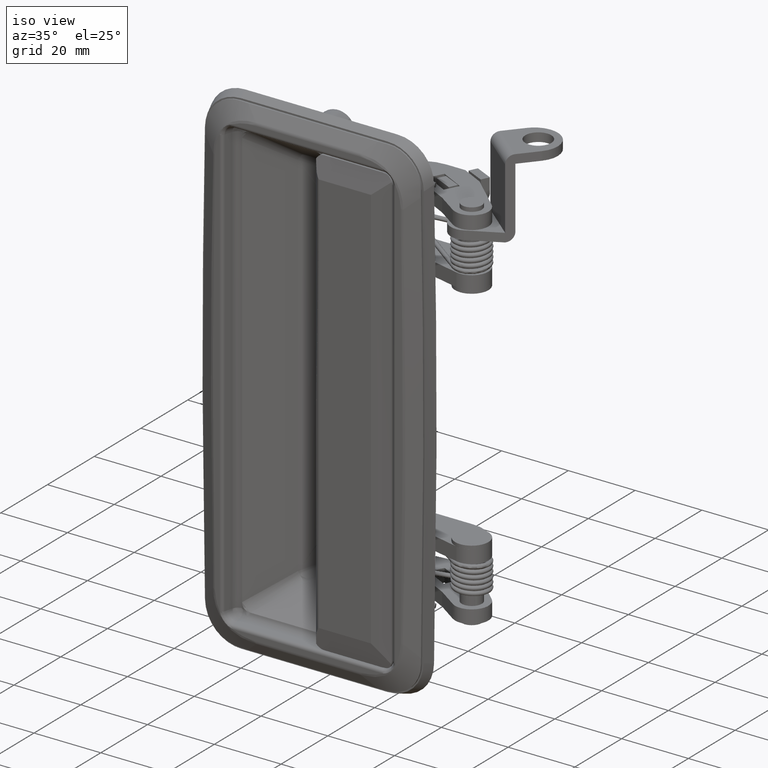
[diagram: clean part render]
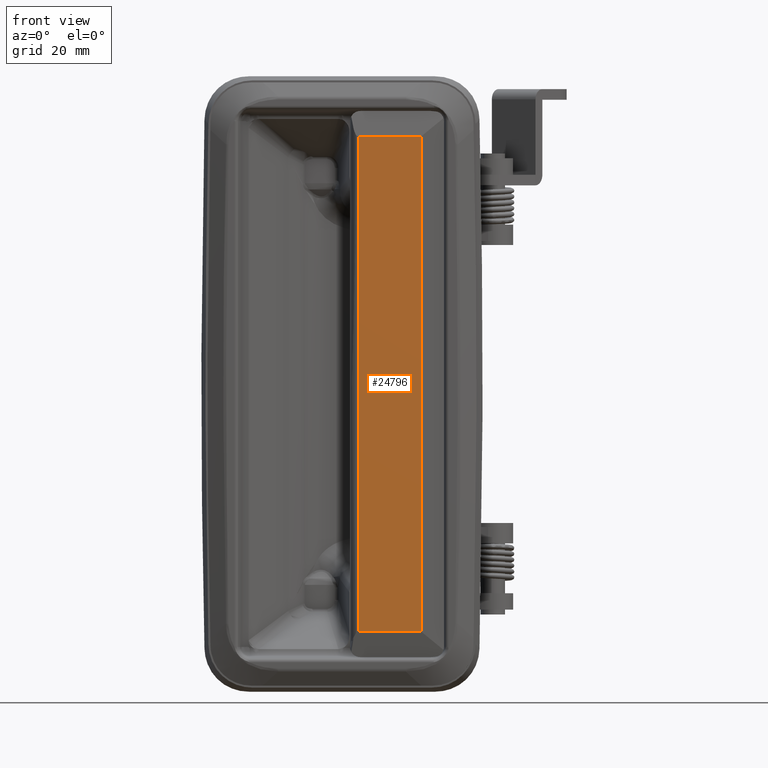
[diagram: tour spotlight — one face highlighted and labeled with its STEP entity id]
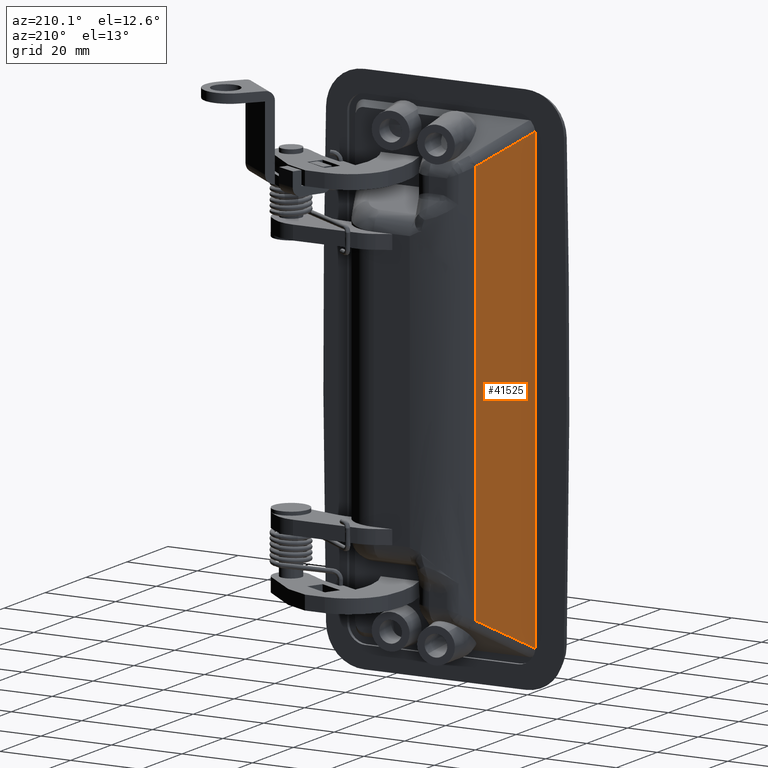
[diagram: tour spotlight — one face highlighted and labeled with its STEP entity id]
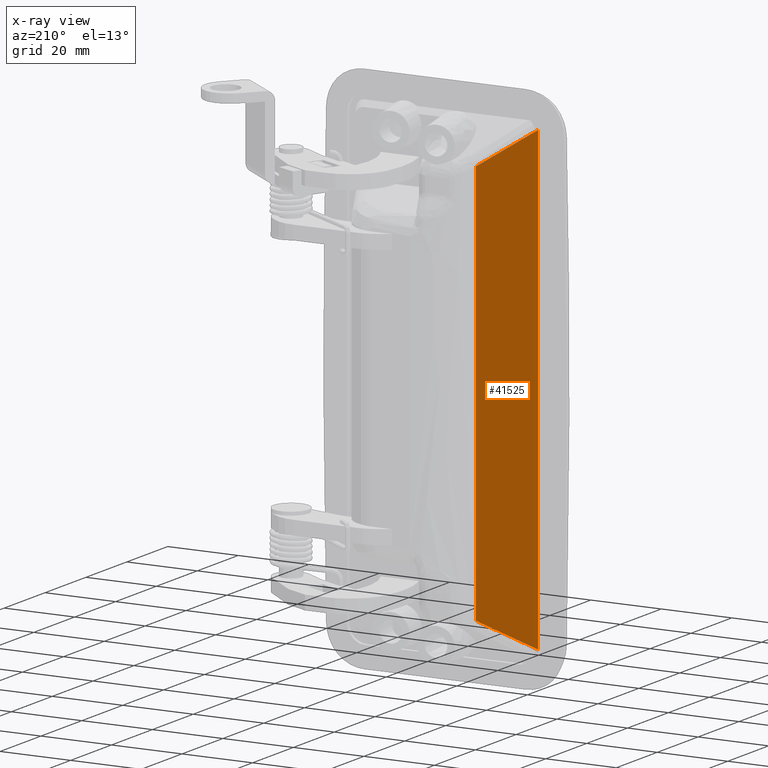
[diagram: x-ray of the same camera — body ghosted, this tour face saturated]
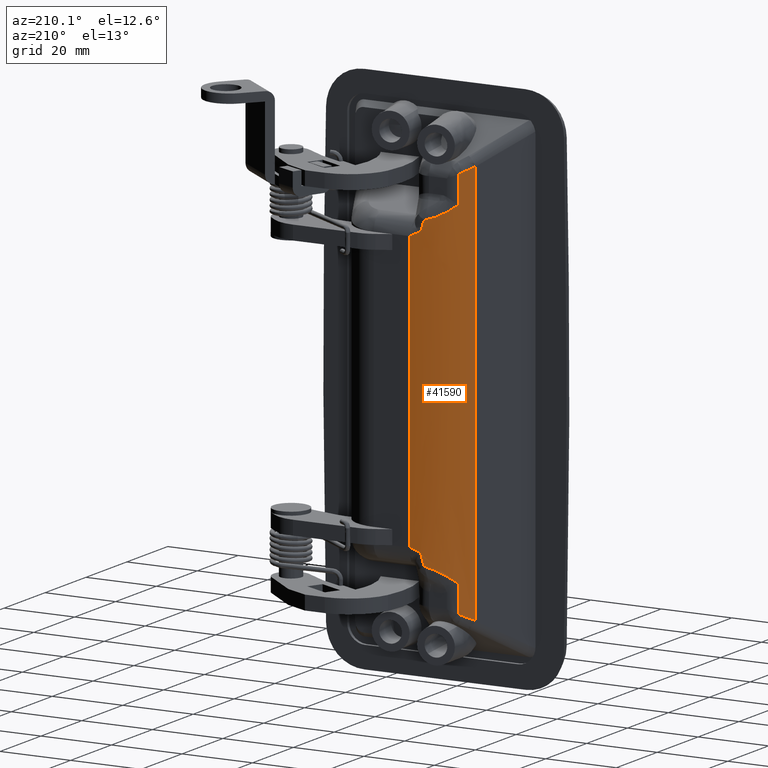
[diagram: tour spotlight — one face highlighted and labeled with its STEP entity id]
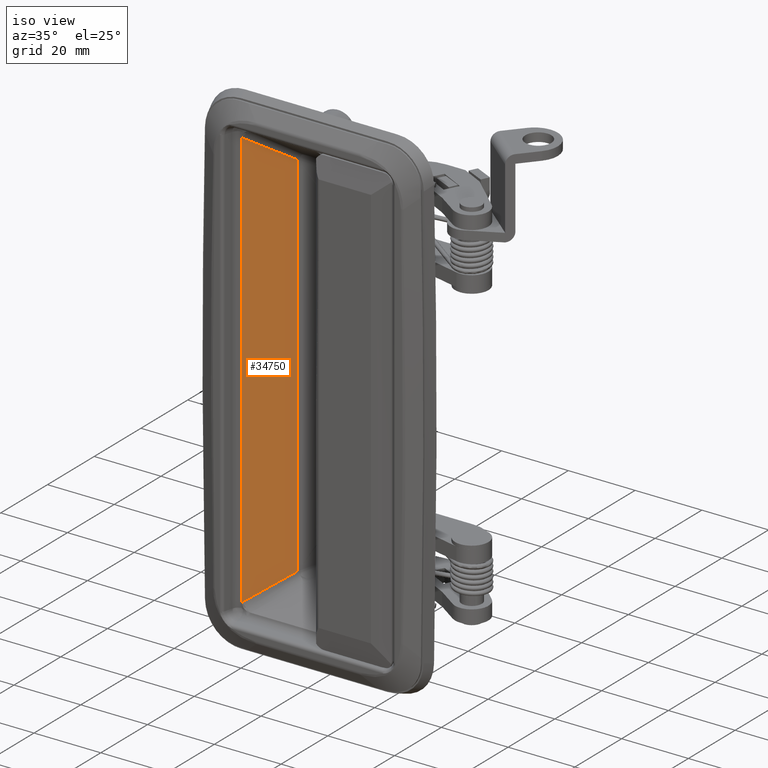
[diagram: tour spotlight — one face highlighted and labeled with its STEP entity id]
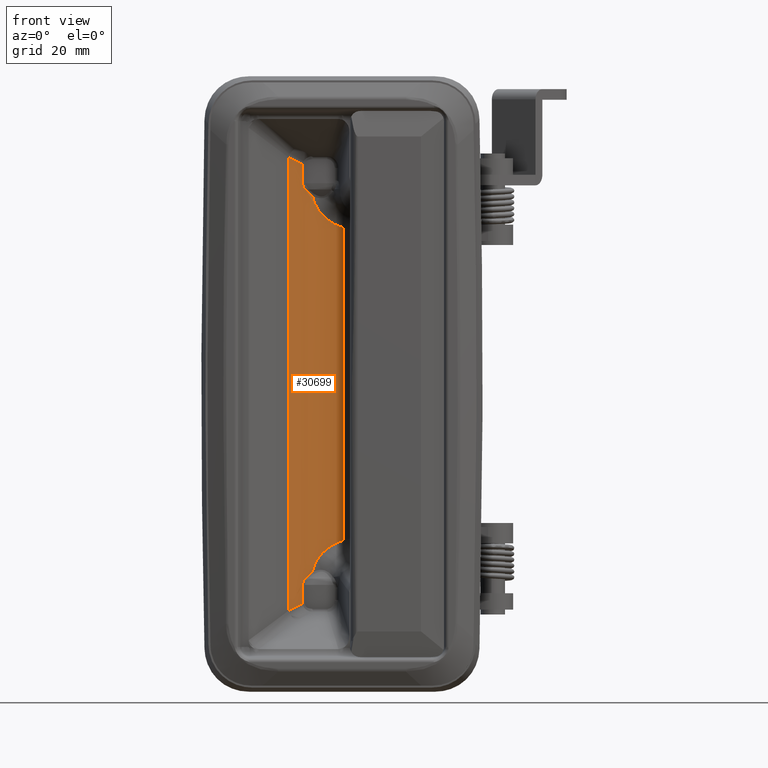
[diagram: tour spotlight — one face highlighted and labeled with its STEP entity id]
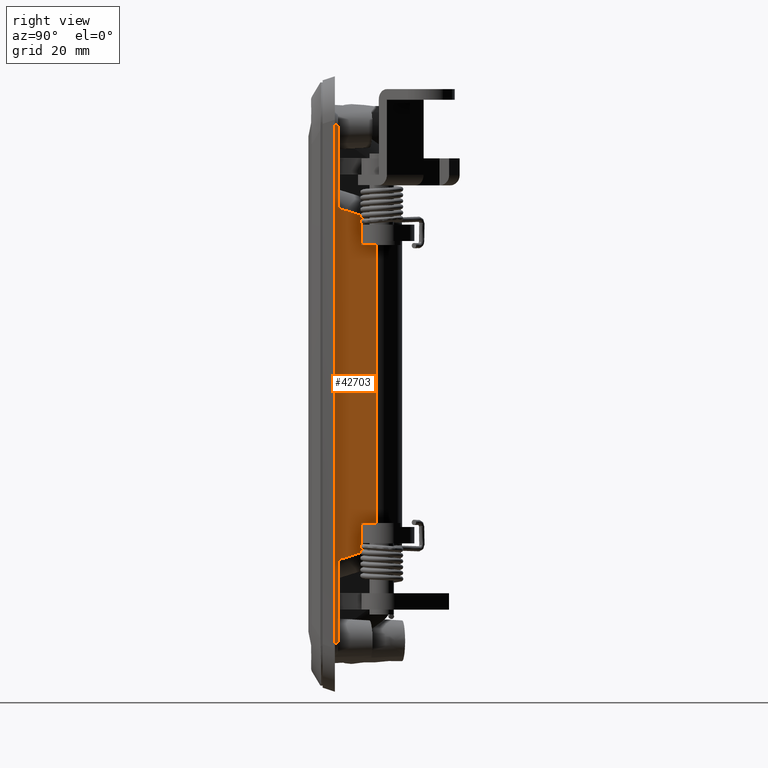
[diagram: tour spotlight — one face highlighted and labeled with its STEP entity id]
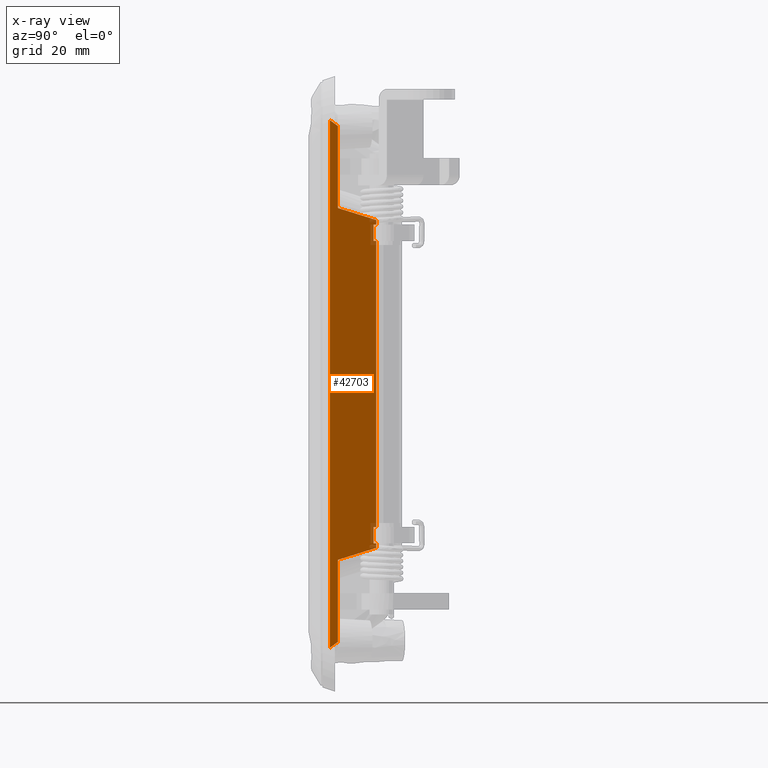
[diagram: x-ray of the same camera — body ghosted, this tour face saturated]
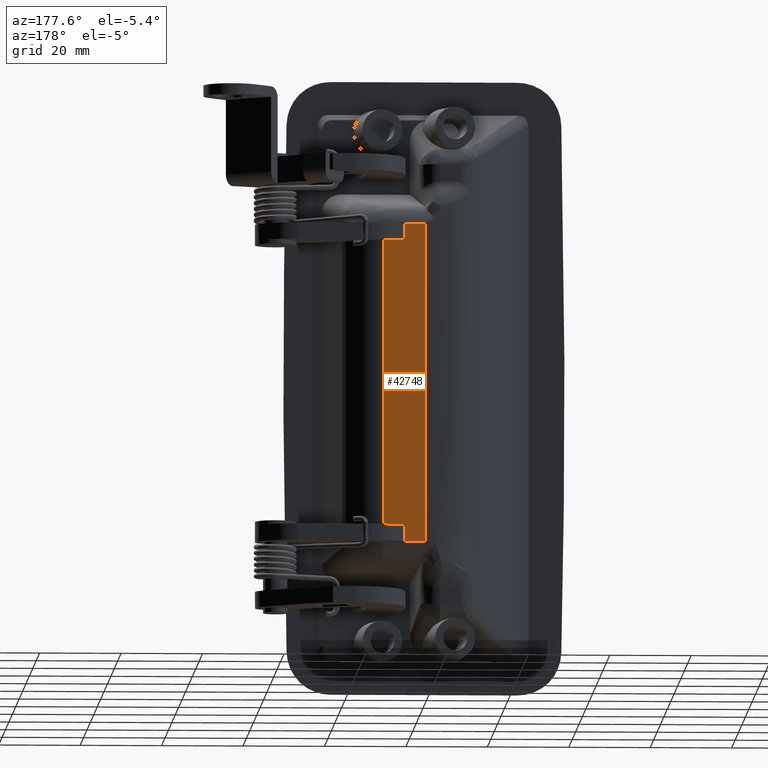
[diagram: tour spotlight — one face highlighted and labeled with its STEP entity id]
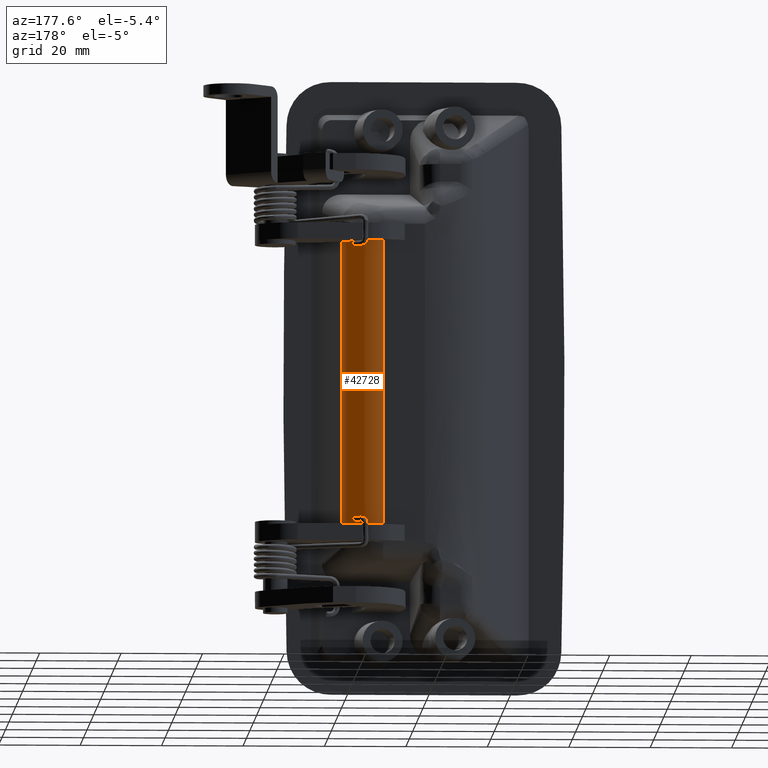
[diagram: tour spotlight — one face highlighted and labeled with its STEP entity id]
A machine part: a face-by-face anatomy tour. The part has 494 B-rep faces; the first image is the clean iso view, then the 8 largest visible faces are spotlighted one at a time (largest first), each with its STEP entity span.

Face 1 — front view, entity #24796. In plain terms, the highlighted face is a freeform B-spline surface patch.
Definition (entity closure, byte-faithful):
#23688=CARTESIAN_POINT('',(19.400964945760901,-0.682999999999989,-60.714620732566402));
#23689=VERTEX_POINT('',#23688);
#23728=CARTESIAN_POINT('',(19.400964945760901,-0.682999999999989,60.714620732566502));
#23729=VERTEX_POINT('',#23728);
#23743=CARTESIAN_POINT('',(19.400964945760901,-0.682999999999989,-60.714620732566402));
#23744=CARTESIAN_POINT('',(19.400964945760901,-0.682999999999989,60.714620732566502));
#23745=QUASI_UNIFORM_CURVE('',1,(#23743,#23744),.UNSPECIFIED.,.F.,.U.);
#23746=EDGE_CURVE('',#23689,#23729,#23745,.T.);
#24769=CARTESIAN_POINT('',(3.230721830809301,-0.682999999999992,-66.780011108396351));
#24770=CARTESIAN_POINT('',(20.170243528037670,-0.682999999999992,-66.780011108396351));
#24771=CARTESIAN_POINT('',(3.230721830809301,-0.682999999999992,66.780014365382499));
#24772=CARTESIAN_POINT('',(20.170243528037670,-0.682999999999992,66.780014365382499));
#24773=B_SPLINE_SURFACE_WITH_KNOTS('',1,1,((#24769,#24771),(#24770,#24772)),.UNSPECIFIED.,.F.,.F.,.U.,(2,2),(2,2),(0.0,16.939521697228368),(0.0,133.560025473778890),.UNSPECIFIED.);
#24774=CARTESIAN_POINT('',(4.0,-0.682999999999992,-60.714620732566402));
#24775=VERTEX_POINT('',#24774);
#24776=CARTESIAN_POINT('',(19.400964945760901,-0.682999999999989,-60.714620732566402));
#24777=CARTESIAN_POINT('',(4.0,-0.682999999999992,-60.714620732566402));
#24778=QUASI_UNIFORM_CURVE('',1,(#24776,#24777),.UNSPECIFIED.,.F.,.U.);
#24779=EDGE_CURVE('',#23689,#24775,#24778,.T.);
#24780=ORIENTED_EDGE('',*,*,#24779,.F.);
#24781=ORIENTED_EDGE('',*,*,#23746,.T.);
#24782=CARTESIAN_POINT('',(4.0,-0.683000000000000,60.714620732566502));
#24783=VERTEX_POINT('',#24782);
#24784=CARTESIAN_POINT('',(4.0,-0.683000000000000,60.714620732566502));
#24785=CARTESIAN_POINT('',(19.400964945760901,-0.682999999999989,60.714620732566502));
#24786=QUASI_UNIFORM_CURVE('',1,(#24784,#24785),.UNSPECIFIED.,.F.,.U.);
#24787=EDGE_CURVE('',#24783,#23729,#24786,.T.);
#24788=ORIENTED_EDGE('',*,*,#24787,.F.);
#24789=CARTESIAN_POINT('',(4.0,-0.682999999999992,-60.714620732566402));
#24790=CARTESIAN_POINT('',(4.0,-0.683000000000000,60.714620732566502));
#24791=QUASI_UNIFORM_CURVE('',1,(#24789,#24790),.UNSPECIFIED.,.F.,.U.);
#24792=EDGE_CURVE('',#24775,#24783,#24791,.T.);
#24793=ORIENTED_EDGE('',*,*,#24792,.F.);
#24794=EDGE_LOOP('',(#24780,#24781,#24788,#24793));
#24795=FACE_OUTER_BOUND('',#24794,.T.);
#24796=ADVANCED_FACE('',(#24795),#24773,.T.);

Face 2 — auxiliary view, entity #41525. An x-ray twin of the same camera follows (body ghosted, this face saturated) — the face is partly hidden behind the body. In plain terms, the highlighted face is a freeform B-spline surface patch.
Definition (entity closure, byte-faithful):
#40148=CARTESIAN_POINT('',(-14.607180682946160,15.955601631500000,57.101182796435701));
#40149=VERTEX_POINT('',#40148);
#40192=CARTESIAN_POINT('',(-25.672463871690901,4.574100000000001,65.321047110445804));
#40193=VERTEX_POINT('',#40192);
#40213=CARTESIAN_POINT('',(-25.672463871690901,4.574100000000001,65.321047110445804));
#40214=CARTESIAN_POINT('',(-14.607180682946160,15.955601631500000,57.101182796435701));
#40215=QUASI_UNIFORM_CURVE('',1,(#40213,#40214),.UNSPECIFIED.,.F.,.U.);
#40216=EDGE_CURVE('',#40193,#40149,#40215,.T.);
#40241=CARTESIAN_POINT('',(-14.607180682946160,15.955601631500000,-57.101182796435197));
#40242=VERTEX_POINT('',#40241);
#40299=CARTESIAN_POINT('',(-25.672463871690852,4.574100000000001,-65.321047110445107));
#40300=VERTEX_POINT('',#40299);
#40301=CARTESIAN_POINT('',(-14.607180682946160,15.955601631500000,-57.101182796435197));
#40302=CARTESIAN_POINT('',(-25.672463871690852,4.574100000000001,-65.321047110445107));
#40303=QUASI_UNIFORM_CURVE('',1,(#40301,#40302),.UNSPECIFIED.,.F.,.U.);
#40304=EDGE_CURVE('',#40242,#40300,#40303,.T.);
#41506=CARTESIAN_POINT('',(-26.225174745522001,4.005594015566110,-71.846619463568871));
#41507=CARTESIAN_POINT('',(-14.054469512321010,16.524107921209549,-71.846619463568871));
#41508=CARTESIAN_POINT('',(-26.225174745522001,4.005594015566110,71.846622967663606));
#41509=CARTESIAN_POINT('',(-14.054469512321010,16.524107921209549,71.846622967663606));
#41510=B_SPLINE_SURFACE_WITH_KNOTS('',1,1,((#41506,#41508),(#41507,#41509)),.UNSPECIFIED.,.F.,.F.,.U.,(2,2),(2,2),(0.0,17.459646510718770),(0.0,143.693242431232510),.UNSPECIFIED.);
#41511=CARTESIAN_POINT('',(-25.672463871690852,4.574100000000001,-65.321047110445107));
#41512=CARTESIAN_POINT('',(-25.672463871690901,4.574100000000001,65.321047110445804));
#41513=QUASI_UNIFORM_CURVE('',1,(#41511,#41512),.UNSPECIFIED.,.F.,.U.);
#41514=EDGE_CURVE('',#40300,#40193,#41513,.T.);
#41515=ORIENTED_EDGE('',*,*,#41514,.T.);
#41516=ORIENTED_EDGE('',*,*,#40216,.T.);
#41517=CARTESIAN_POINT('',(-14.607180682946160,15.955601631500000,-57.101182796435197));
#41518=CARTESIAN_POINT('',(-14.607180682946160,15.955601631500000,57.101182796435701));
#41519=QUASI_UNIFORM_CURVE('',1,(#41517,#41518),.UNSPECIFIED.,.F.,.U.);
#41520=EDGE_CURVE('',#40242,#40149,#41519,.T.);
#41521=ORIENTED_EDGE('',*,*,#41520,.F.);
#41522=ORIENTED_EDGE('',*,*,#40304,.T.);
#41523=EDGE_LOOP('',(#41515,#41516,#41521,#41522));
#41524=FACE_OUTER_BOUND('',#41523,.T.);
#41525=ADVANCED_FACE('',(#41524),#41510,.F.);

Face 3 — auxiliary view, entity #41590. In plain terms, the highlighted face is a freeform B-spline surface patch.
Definition (entity closure, byte-faithful):
#36761=CARTESIAN_POINT('',(0.449755999999865,22.317000000000000,-39.139686552348699));
#36762=VERTEX_POINT('',#36761);
#36763=CARTESIAN_POINT('',(-1.878984883214550,22.187480729941200,-39.969971139252998));
#36764=VERTEX_POINT('',#36763);
#36765=CARTESIAN_POINT('',(0.449755999999866,22.317000000000000,-39.139686552348699));
#36766=CARTESIAN_POINT('',(0.061413065597201,22.317000000000000,-39.279301864897192));
#36767=CARTESIAN_POINT('',(-0.327435267551959,22.306213741792529,-39.419099998958259));
#36768=CARTESIAN_POINT('',(-1.103719780657988,22.263069625682061,-39.696460437575240));
#36769=CARTESIAN_POINT('',(-1.491430097295720,22.230724327735281,-39.834125388535092));
#36770=CARTESIAN_POINT('',(-1.878984883214545,22.187480729941200,-39.969971139252998));
#36771=B_SPLINE_CURVE_WITH_KNOTS('',3,(#36765,#36766,#36767,#36768,#36769,#36770),.UNSPECIFIED.,.F.,.U.,(4,2,4),(0.0,0.500000000000000,1.0),.UNSPECIFIED.);
#36772=EDGE_CURVE('',#36762,#36764,#36771,.T.);
#36841=CARTESIAN_POINT('',(-2.843390640956000,22.057182863252748,-41.115259240074700));
#36842=VERTEX_POINT('',#36841);
#36843=CARTESIAN_POINT('',(-1.878984883214550,22.187480729941200,-39.969971139252998));
#36844=CARTESIAN_POINT('',(-1.909970895055623,22.184023291968568,-39.980832359893718));
#36845=CARTESIAN_POINT('',(-1.940739559673836,22.180520217537801,-39.992493089509338));
#36846=CARTESIAN_POINT('',(-2.001807711804034,22.173432586983662,-40.017547031509388));
#36847=CARTESIAN_POINT('',(-2.032182525772175,22.169838741373130,-40.030979241419558));
#36848=CARTESIAN_POINT('',(-2.121656458018279,22.159059582691050,-40.073677571368307));
#36849=CARTESIAN_POINT('',(-2.179289546476281,22.151856357184791,-40.105386818189132));
#36850=CARTESIAN_POINT('',(-2.290085368411397,22.137576101201230,-40.176031007091133));
#36851=CARTESIAN_POINT('',(-2.343292739803885,22.130492744302291,-40.214989276373188));
#36852=CARTESIAN_POINT('',(-2.444362627135531,22.116679777633870,-40.301195651774378));
#36853=CARTESIAN_POINT('',(-2.491117556402377,22.110102816374891,-40.347503209486831));
#36854=CARTESIAN_POINT('',(-2.576544053552935,22.097841416866391,-40.446993224797268));
#36855=CARTESIAN_POINT('',(-2.615208352533883,22.092157933383628,-40.500181882843052));
#36856=CARTESIAN_POINT('',(-2.666464535443045,22.084509912946171,-40.585713410552017));
#36857=CARTESIAN_POINT('',(-2.682363780149943,22.082115933137139,-40.615123887290501));
#36858=CARTESIAN_POINT('',(-2.711293246681967,22.077731723469778,-40.674575782476090));
#36859=CARTESIAN_POINT('',(-2.724413271289357,22.075728181431110,-40.704768906166798));
#36860=CARTESIAN_POINT('',(-2.760276294597163,22.070223310151100,-40.796564022493200));
#36861=CARTESIAN_POINT('',(-2.779485047563366,22.067236160051610,-40.859394850984742));
#36862=CARTESIAN_POINT('',(-2.813620622525986,22.061895069889669,-40.986545847343457));
#36863=CARTESIAN_POINT('',(-2.828606803515695,22.059530255507060,-41.050654714847219));
#36864=CARTESIAN_POINT('',(-2.843390640955770,22.057182863252748,-41.115259240074600));
#36865=B_SPLINE_CURVE_WITH_KNOTS('',3,(#36843,#36844,#36845,#36846,#36847,#36848,#36849,#36850,#36851,#36852,#36853,#36854,#36855,#36856,#36857,#36858,#36859,#36860,#36861,#36862,#36863,#36864),.UNSPECIFIED.,.F.,.U.,(4,2,2,2,2,2,2,2,2,2,4),(0.0,0.062500000000002,0.125000000000003,0.250000000000003,0.375000000000002,0.500000000000001,0.625000000000000,0.687500000000000,0.750000000000000,0.875000000000000,1.0),.UNSPECIFIED.);
#36866=EDGE_CURVE('',#36764,#36842,#36865,.T.);
#37267=CARTESIAN_POINT('',(-11.307683772092620,18.717074999999799,-55.241236998996797));
#37268=VERTEX_POINT('',#37267);
#37335=CARTESIAN_POINT('',(-12.106303124971801,18.149866043850551,-55.742846663003100));
#37336=VERTEX_POINT('',#37335);
#37337=CARTESIAN_POINT('',(-11.307683772092640,18.717074999999799,-55.241236998996698));
#37338=CARTESIAN_POINT('',(-11.432916510690330,18.632453733622700,-55.348579346366137));
#37339=CARTESIAN_POINT('',(-11.563474047434379,18.542246814039959,-55.441127881122938));
#37340=CARTESIAN_POINT('',(-11.830677861833500,18.352779058860410,-55.606293020900921));
#37341=CARTESIAN_POINT('',(-11.967412256288039,18.253468244127589,-55.678712818719212));
#37342=CARTESIAN_POINT('',(-12.106303124971760,18.149866043850551,-55.742846663003100));
#37343=B_SPLINE_CURVE_WITH_KNOTS('',3,(#37337,#37338,#37339,#37340,#37341,#37342),.UNSPECIFIED.,.F.,.U.,(4,2,4),(0.0,0.500000000000000,1.0),.UNSPECIFIED.);
#37344=EDGE_CURVE('',#37268,#37336,#37343,.T.);
#37399=CARTESIAN_POINT('',(-11.307683772092741,18.717074999999749,55.241236998997103));
#37400=VERTEX_POINT('',#37399);
#37477=CARTESIAN_POINT('',(-12.106303124971801,18.149866043850551,55.742846663003398));
#37478=VERTEX_POINT('',#37477);
#37479=CARTESIAN_POINT('',(-12.106303124971801,18.149866043850551,55.742846663003398));
#37480=CARTESIAN_POINT('',(-11.967412256288091,18.253468244127571,55.678712818719511));
#37481=CARTESIAN_POINT('',(-11.830677861833570,18.352779058860381,55.606293020901241));
#37482=CARTESIAN_POINT('',(-11.563474047434459,18.542246814039899,55.441127881123244));
#37483=CARTESIAN_POINT('',(-11.432916510690420,18.632453733622601,55.348579346366520));
#37484=CARTESIAN_POINT('',(-11.307683772092741,18.717074999999699,55.241236998997103));
#37485=B_SPLINE_CURVE_WITH_KNOTS('',3,(#37479,#37480,#37481,#37482,#37483,#37484),.UNSPECIFIED.,.F.,.U.,(4,2,4),(0.0,0.500000000000000,1.0),.UNSPECIFIED.);
#37486=EDGE_CURVE('',#37478,#37400,#37485,.T.);
#39195=CARTESIAN_POINT('',(-3.559311768798585,21.930766653020552,-43.534006773501197));
#39196=VERTEX_POINT('',#39195);
#39257=CARTESIAN_POINT('',(-3.559311768798560,21.930766653020552,43.534006773501702));
#39258=VERTEX_POINT('',#39257);
#39357=CARTESIAN_POINT('',(-2.835469585392660,22.058439025609651,40.726829875074550));
#39358=VERTEX_POINT('',#39357);
#39359=CARTESIAN_POINT('',(-3.559311768798570,21.930766653020552,43.534006773501702));
#39360=CARTESIAN_POINT('',(-3.424795143993407,21.956928114627800,43.327488131741497));
#39361=CARTESIAN_POINT('',(-3.313956078361382,21.977187893206970,43.109540973289157));
#39362=CARTESIAN_POINT('',(-3.174684697184573,22.001913650543671,42.769683847403748));
#39363=CARTESIAN_POINT('',(-3.132845428472716,22.009182629974440,42.654199627587147));
#39364=CARTESIAN_POINT('',(-3.057651675386747,22.022060888250220,42.419174191841670));
#39365=CARTESIAN_POINT('',(-3.024622702756911,22.027614289289559,42.300614817682970));
#39366=CARTESIAN_POINT('',(-2.938262096321884,22.041978644586681,41.943627915576883));
#39367=CARTESIAN_POINT('',(-2.897321427483276,22.048564939895432,41.703220486285659));
#39368=CARTESIAN_POINT('',(-2.844620193850572,22.057004765092529,41.218178758936993));
#39369=CARTESIAN_POINT('',(-2.832893309638575,22.058847080567251,40.973539448505242));
#39370=CARTESIAN_POINT('',(-2.835469585392655,22.058439025609651,40.726829875074550));
#39371=B_SPLINE_CURVE_WITH_KNOTS('',3,(#39359,#39360,#39361,#39362,#39363,#39364,#39365,#39366,#39367,#39368,#39369,#39370),.UNSPECIFIED.,.F.,.U.,(4,2,2,2,2,4),(0.0,0.250000000000008,0.375000000000009,0.500000000000010,0.750000000000005,1.0),.UNSPECIFIED.);
#39372=EDGE_CURVE('',#39258,#39358,#39371,.T.);
#39536=CARTESIAN_POINT('',(-2.843390640956003,22.057182863252748,-41.115259240074693));
#39537=CARTESIAN_POINT('',(-2.854381983231861,22.055437647111980,-41.328734362953327));
#39538=CARTESIAN_POINT('',(-2.876240761813304,22.051967419470429,-41.539831162310897));
#39539=CARTESIAN_POINT('',(-2.942557425091355,22.041221046206719,-41.957071097759503));
#39540=CARTESIAN_POINT('',(-2.986993094781610,22.033952406779019,-42.163219238966029));
#39541=CARTESIAN_POINT('',(-3.101331507913140,22.014660227097480,-42.569916418481398));
#39542=CARTESIAN_POINT('',(-3.171157015090867,22.002660773418370,-42.770482785938327));
#39543=CARTESIAN_POINT('',(-3.342467033726368,21.971941712778300,-43.164625928297262));
#39544=CARTESIAN_POINT('',(-3.442248875012616,21.953533626291339,-43.354284230951478));
#39545=CARTESIAN_POINT('',(-3.559311768798585,21.930766653020552,-43.534006773501197));
#39546=B_SPLINE_CURVE_WITH_KNOTS('',3,(#39536,#39537,#39538,#39539,#39540,#39541,#39542,#39543,#39544,#39545),.UNSPECIFIED.,.F.,.U.,(4,2,2,2,4),(0.0,0.250000000000000,0.500000000000000,0.750000000000000,1.0),.UNSPECIFIED.);
#39547=EDGE_CURVE('',#36842,#39196,#39546,.T.);
#39829=CARTESIAN_POINT('',(-11.307683772092741,18.717074999999699,47.613119435320201));
#39830=VERTEX_POINT('',#39829);
#40069=CARTESIAN_POINT('',(-11.307683772092711,18.717074999999738,47.613119435320229));
#40070=CARTESIAN_POINT('',(-7.761021605826108,21.113597245555553,44.571233252186396));
#40071=CARTESIAN_POINT('',(-3.559311768798550,21.930766653020552,43.534006773501687));
#40079=(BOUNDED_CURVE()B_SPLINE_CURVE(2,(#40069,#40070,#40071),.UNSPECIFIED.,.F.,.U.)CURVE()GEOMETRIC_REPRESENTATION_ITEM()QUASI_UNIFORM_CURVE()RATIONAL_B_SPLINE_CURVE((1.0,0.979852283414046,1.0))REPRESENTATION_ITEM(''));
#40080=EDGE_CURVE('',#39830,#39258,#40079,.T.);
#40101=CARTESIAN_POINT('',(-11.307683772092741,18.717074999999749,55.241236998997103));
#40102=CARTESIAN_POINT('',(-11.307683772092741,18.717074999999699,47.613119435320201));
#40103=QUASI_UNIFORM_CURVE('',1,(#40101,#40102),.UNSPECIFIED.,.F.,.U.);
#40104=EDGE_CURVE('',#37400,#39830,#40103,.T.);
#40148=CARTESIAN_POINT('',(-14.607180682946160,15.955601631500000,57.101182796435701));
#40149=VERTEX_POINT('',#40148);
#40150=CARTESIAN_POINT('',(-14.607180682946160,15.955601631500000,57.101182796435673));
#40151=CARTESIAN_POINT('',(-13.443925423356877,17.152099851114780,56.360503252009593));
#40152=CARTESIAN_POINT('',(-12.106303124971779,18.149866043850540,55.742846663003370));
#40160=(BOUNDED_CURVE()B_SPLINE_CURVE(2,(#40150,#40151,#40152),.UNSPECIFIED.,.F.,.U.)CURVE()GEOMETRIC_REPRESENTATION_ITEM()QUASI_UNIFORM_CURVE()RATIONAL_B_SPLINE_CURVE((1.0,0.996857538411070,1.0))REPRESENTATION_ITEM(''));
#40161=EDGE_CURVE('',#40149,#37478,#40160,.T.);
#40241=CARTESIAN_POINT('',(-14.607180682946160,15.955601631500000,-57.101182796435197));
#40242=VERTEX_POINT('',#40241);
#40243=CARTESIAN_POINT('',(-12.106303124971820,18.149866043850519,-55.742846663003050));
#40244=CARTESIAN_POINT('',(-13.443925423356903,17.152099851114773,-56.360503252009231));
#40245=CARTESIAN_POINT('',(-14.607180682946160,15.955601631500020,-57.101182796435282));
#40253=(BOUNDED_CURVE()B_SPLINE_CURVE(2,(#40243,#40244,#40245),.UNSPECIFIED.,.F.,.U.)CURVE()GEOMETRIC_REPRESENTATION_ITEM()QUASI_UNIFORM_CURVE()RATIONAL_B_SPLINE_CURVE((1.0,0.996857538411044,1.0))REPRESENTATION_ITEM(''));
#40254=EDGE_CURVE('',#37336,#40242,#40253,.T.);
#40852=CARTESIAN_POINT('',(0.449755999999865,22.317000000000000,39.139770970547900));
#40853=VERTEX_POINT('',#40852);
#40854=CARTESIAN_POINT('',(-2.835469585392660,22.058439025609651,40.726829875074550));
#40855=CARTESIAN_POINT('',(-2.289076851526810,22.144981882484359,40.468277607222660));
#40856=CARTESIAN_POINT('',(-1.742574865602077,22.209467186410500,40.205559729084847));
#40857=CARTESIAN_POINT('',(-0.647769156070094,22.295487512003898,39.675310829707144));
#40858=CARTESIAN_POINT('',(-0.098992366881809,22.317000000000000,39.407532591665863));
#40859=CARTESIAN_POINT('',(0.449755999999866,22.317000000000000,39.139770970547900));
#40860=B_SPLINE_CURVE_WITH_KNOTS('',3,(#40854,#40855,#40856,#40857,#40858,#40859),.UNSPECIFIED.,.F.,.U.,(4,2,4),(0.0,0.500000000000000,1.0),.UNSPECIFIED.);
#40861=EDGE_CURVE('',#39358,#40853,#40860,.T.);
#41065=CARTESIAN_POINT('',(-11.307683772092620,18.717074999999799,-47.613119435319803));
#41066=VERTEX_POINT('',#41065);
#41134=CARTESIAN_POINT('',(-3.559311768798585,21.930766653020530,-43.534006773501147));
#41135=CARTESIAN_POINT('',(-7.761021605826061,21.113597245555546,-44.571233252185856));
#41136=CARTESIAN_POINT('',(-11.307683772092620,18.717074999999792,-47.613119435319639));
#41144=(BOUNDED_CURVE()B_SPLINE_CURVE(2,(#41134,#41135,#41136),.UNSPECIFIED.,.F.,.U.)CURVE()GEOMETRIC_REPRESENTATION_ITEM()QUASI_UNIFORM_CURVE()RATIONAL_B_SPLINE_CURVE((1.0,0.979852283414047,1.0))REPRESENTATION_ITEM(''));
#41145=EDGE_CURVE('',#39196,#41066,#41144,.T.);
#41170=CARTESIAN_POINT('',(-11.307683772092620,18.717074999999799,-47.613119435319803));
#41171=CARTESIAN_POINT('',(-11.307683772092620,18.717074999999799,-55.241236998996797));
#41172=QUASI_UNIFORM_CURVE('',1,(#41170,#41171),.UNSPECIFIED.,.F.,.U.);
#41173=EDGE_CURVE('',#41066,#37268,#41172,.T.);
#41517=CARTESIAN_POINT('',(-14.607180682946160,15.955601631500000,-57.101182796435197));
#41518=CARTESIAN_POINT('',(-14.607180682946160,15.955601631500000,57.101182796435701));
#41519=QUASI_UNIFORM_CURVE('',1,(#41517,#41518),.UNSPECIFIED.,.F.,.U.);
#41520=EDGE_CURVE('',#40242,#40149,#41519,.T.);
#41555=CARTESIAN_POINT('',(-15.033068073012750,15.504394359928840,-59.956241936256980));
#41556=CARTESIAN_POINT('',(-15.033068073012750,15.504394359928840,60.027618414753043));
#41557=CARTESIAN_POINT('',(-8.458008802330976,22.679812437058196,-59.956241936256987));
#41558=CARTESIAN_POINT('',(-8.458008802330976,22.679812437058196,60.027618414753029));
#41559=CARTESIAN_POINT('',(1.266938577987504,22.301094277195602,-59.956241936256987));
#41560=CARTESIAN_POINT('',(1.266938577987504,22.301094277195602,60.027618414753036));
#41568=(BOUNDED_SURFACE()B_SPLINE_SURFACE(1,2,((#41555,#41557,#41559),(#41556,#41558,#41560)),.UNSPECIFIED.,.F.,.F.,.U.)B_SPLINE_SURFACE_WITH_KNOTS((2,2),(3,3),(0.0,119.983860351009990),(0.0,18.518515983173920),.UNSPECIFIED.)GEOMETRIC_REPRESENTATION_ITEM()RATIONAL_B_SPLINE_SURFACE(((1.0,0.903346919665803,0.991303886398666),(1.0,0.903346919665803,0.991303886398666)))REPRESENTATION_ITEM('')SURFACE());
#41569=CARTESIAN_POINT('',(0.449755999999865,22.317000000000000,-39.139686552348699));
#41570=CARTESIAN_POINT('',(0.449755999999865,22.317000000000000,39.139770970547900));
#41571=QUASI_UNIFORM_CURVE('',1,(#41569,#41570),.UNSPECIFIED.,.F.,.U.);
#41572=EDGE_CURVE('',#36762,#40853,#41571,.T.);
#41573=ORIENTED_EDGE('',*,*,#41572,.F.);
#41574=ORIENTED_EDGE('',*,*,#36772,.T.);
#41575=ORIENTED_EDGE('',*,*,#36866,.T.);
#41576=ORIENTED_EDGE('',*,*,#39547,.T.);
#41577=ORIENTED_EDGE('',*,*,#41145,.T.);
#41578=ORIENTED_EDGE('',*,*,#41173,.T.);
#41579=ORIENTED_EDGE('',*,*,#37344,.T.);
#41580=ORIENTED_EDGE('',*,*,#40254,.T.);
#41581=ORIENTED_EDGE('',*,*,#41520,.T.);
#41582=ORIENTED_EDGE('',*,*,#40161,.T.);
#41583=ORIENTED_EDGE('',*,*,#37486,.T.);
#41584=ORIENTED_EDGE('',*,*,#40104,.T.);
#41585=ORIENTED_EDGE('',*,*,#40080,.T.);
#41586=ORIENTED_EDGE('',*,*,#39372,.T.);
#41587=ORIENTED_EDGE('',*,*,#40861,.T.);
#41588=EDGE_LOOP('',(#41573,#41574,#41575,#41576,#41577,#41578,#41579,#41580,#41581,#41582,#41583,#41584,#41585,#41586,#41587));
#41589=FACE_OUTER_BOUND('',#41588,.T.);
#41590=ADVANCED_FACE('',(#41589),#41568,.T.);

Face 4 — iso view, entity #34750. In plain terms, the highlighted face is a freeform B-spline surface patch.
Definition (entity closure, byte-faithful):
#30545=CARTESIAN_POINT('',(-13.173186713141799,14.561449095166660,-55.641001565722313));
#30546=VERTEX_POINT('',#30545);
#30671=CARTESIAN_POINT('',(-13.173186713141799,14.561449095166660,55.641001565722597));
#30672=VERTEX_POINT('',#30671);
#30686=CARTESIAN_POINT('',(-13.173186713141799,14.561449095166660,-55.641001565722313));
#30687=CARTESIAN_POINT('',(-13.173186713141799,14.561449095166660,55.641001565722597));
#30688=QUASI_UNIFORM_CURVE('',1,(#30686,#30687),.UNSPECIFIED.,.F.,.U.);
#30689=EDGE_CURVE('',#30546,#30672,#30688,.T.);
#32345=CARTESIAN_POINT('',(-22.883051862834449,4.574100000000001,62.853991299143203));
#32346=VERTEX_POINT('',#32345);
#32475=CARTESIAN_POINT('',(-22.883051862834449,4.574100000000001,-62.853991299143203));
#32476=VERTEX_POINT('',#32475);
#32487=CARTESIAN_POINT('',(-22.883051862834449,4.574100000000001,-62.853991299143203));
#32488=CARTESIAN_POINT('',(-22.883051862834449,4.574100000000001,62.853991299143203));
#32489=QUASI_UNIFORM_CURVE('',1,(#32487,#32488),.UNSPECIFIED.,.F.,.U.);
#32490=EDGE_CURVE('',#32476,#32346,#32489,.T.);
#34725=CARTESIAN_POINT('',(-22.883051862834449,4.574100000000001,-62.853991299143203));
#34726=CARTESIAN_POINT('',(-13.173186713141799,14.561449095166660,-55.641001565722313));
#34727=QUASI_UNIFORM_CURVE('',1,(#34725,#34726),.UNSPECIFIED.,.F.,.U.);
#34728=EDGE_CURVE('',#32476,#30546,#34727,.T.);
#34735=CARTESIAN_POINT('',(-23.368059608242000,4.075231932053846,-69.133104786281137));
#34736=CARTESIAN_POINT('',(-12.688178707295380,15.060317430994390,-69.133104786281137));
#34737=CARTESIAN_POINT('',(-23.368059608242000,4.075231932053846,69.133108158031988));
#34738=CARTESIAN_POINT('',(-12.688178707295380,15.060317430994390,69.133108158031988));
#34739=B_SPLINE_SURFACE_WITH_KNOTS('',1,1,((#34735,#34737),(#34736,#34738)),.UNSPECIFIED.,.F.,.F.,.U.,(2,2),(2,2),(0.0,15.320964704529491),(0.0,138.266212944313110),.UNSPECIFIED.);
#34740=ORIENTED_EDGE('',*,*,#32490,.F.);
#34741=ORIENTED_EDGE('',*,*,#34728,.T.);
#34742=ORIENTED_EDGE('',*,*,#30689,.T.);
#34743=CARTESIAN_POINT('',(-13.173186713141799,14.561449095166660,55.641001565722597));
#34744=CARTESIAN_POINT('',(-22.883051862834449,4.574100000000001,62.853991299143203));
#34745=QUASI_UNIFORM_CURVE('',1,(#34743,#34744),.UNSPECIFIED.,.F.,.U.);
#34746=EDGE_CURVE('',#30672,#32346,#34745,.T.);
#34747=ORIENTED_EDGE('',*,*,#34746,.T.);
#34748=EDGE_LOOP('',(#34740,#34741,#34742,#34747));
#34749=FACE_OUTER_BOUND('',#34748,.T.);
#34750=ADVANCED_FACE('',(#34749),#34739,.T.);

Face 5 — front view, entity #30699. In plain terms, the highlighted face is a freeform B-spline surface patch.
Definition (entity closure, byte-faithful):
#29068=CARTESIAN_POINT('',(0.449755999999865,20.317000000000000,38.318796090525247));
#29069=VERTEX_POINT('',#29068);
#29083=CARTESIAN_POINT('',(0.449755999999865,20.317000000000000,-38.318717967305012));
#29084=VERTEX_POINT('',#29083);
#29085=CARTESIAN_POINT('',(0.449755999999865,20.317000000000000,-38.318717967305012));
#29086=CARTESIAN_POINT('',(0.449755999999865,20.317000000000000,38.318796090525247));
#29087=QUASI_UNIFORM_CURVE('',1,(#29085,#29086),.UNSPECIFIED.,.F.,.U.);
#29088=EDGE_CURVE('',#29084,#29069,#29087,.T.);
#29450=CARTESIAN_POINT('',(-7.267729857805110,18.679039397334051,46.183072071130503));
#29451=VERTEX_POINT('',#29450);
#29490=CARTESIAN_POINT('',(0.449755999999918,20.317000000000000,38.318796090525247));
#29491=CARTESIAN_POINT('',(-0.023743081015220,20.317000000000011,38.454206260743383));
#29492=CARTESIAN_POINT('',(-0.484375220984115,20.299332729958540,38.614887391665810));
#29493=CARTESIAN_POINT('',(-1.379899216033723,20.234027218865901,38.987829100253776));
#29494=CARTESIAN_POINT('',(-1.814797699918136,20.186369314838331,39.200071170988622));
#29495=CARTESIAN_POINT('',(-2.341696470732749,20.111124732642221,39.499611824671490));
#29496=CARTESIAN_POINT('',(-2.446237162257183,20.095291975441501,39.561238149665627));
#29497=CARTESIAN_POINT('',(-2.653612041124544,20.062136241492031,39.688005137411800));
#29498=CARTESIAN_POINT('',(-2.756613742214069,20.044783078467471,39.753257225865262));
#29499=CARTESIAN_POINT('',(-3.061709924525872,19.990839211382450,39.953560581247757));
#29500=CARTESIAN_POINT('',(-3.259483089457709,19.952453637305680,40.092843193003013));
#29501=CARTESIAN_POINT('',(-3.836231583771334,19.831444577018161,40.527976258377130));
#29502=CARTESIAN_POINT('',(-4.198715121974550,19.742963702529099,40.841020269226533));
#29503=CARTESIAN_POINT('',(-4.709253300398983,19.604037173175030,41.346715184759532));
#29504=CARTESIAN_POINT('',(-4.873882537979210,19.556693733265060,41.521323152054933));
#29505=CARTESIAN_POINT('',(-5.112285454588439,19.484844768960141,41.792742251924139));
#29506=CARTESIAN_POINT('',(-5.190464810996592,19.460712584269722,41.884974084105806));
#29507=CARTESIAN_POINT('',(-5.343017196193627,19.412584429214959,42.071585890873180));
#29508=CARTESIAN_POINT('',(-5.417430028634781,19.388578904702030,42.165997160943682));
#29509=CARTESIAN_POINT('',(-5.780253990147071,19.269168436662500,42.643604396887589));
#29510=CARTESIAN_POINT('',(-6.041115976328485,19.175600977892412,43.043349481123052));
#29511=CARTESIAN_POINT('',(-6.387764595086395,19.044480759739589,43.671115274850877));
#29512=CARTESIAN_POINT('',(-6.495840212796339,19.002314926969220,43.885081883394840));
#29513=CARTESIAN_POINT('',(-6.646333169779619,18.942221592900911,44.213518532456092));
#29514=CARTESIAN_POINT('',(-6.694558141398132,18.922716979998569,44.324246857986253));
#29515=CARTESIAN_POINT('',(-6.787026427441641,18.884910377408669,44.548294602118460));
#29516=CARTESIAN_POINT('',(-6.831319807320373,18.866587440702659,44.661750955091087));
#29517=CARTESIAN_POINT('',(-7.041950974616579,18.778605728554329,45.234257590466790));
#29518=CARTESIAN_POINT('',(-7.173916779239628,18.720739631421630,45.702926998821802));
#29519=CARTESIAN_POINT('',(-7.267729857805050,18.679039397334090,46.183072071130518));
#29520=B_SPLINE_CURVE_WITH_KNOTS('',3,(#29490,#29491,#29492,#29493,#29494,#29495,#29496,#29497,#29498,#29499,#29500,#29501,#29502,#29503,#29504,#29505,#29506,#29507,#29508,#29509,#29510,#29511,#29512,#29513,#29514,#29515,#29516,#29517,#29518,#29519),.UNSPECIFIED.,.F.,.U.,(4,2,2,2,2,2,2,2,2,2,2,2,2,2,4),(0.0,0.124999999999999,0.249999999999998,0.281249999999997,0.312499999999997,0.374999999999997,0.499999999999996,0.562499999999995,0.593749999999995,0.624999999999994,0.749999999999997,0.812499999999999,0.843749999999999,0.874999999999998,1.0),.UNSPECIFIED.);
#29521=EDGE_CURVE('',#29069,#29451,#29520,.T.);
#30203=CARTESIAN_POINT('',(-7.267744244546020,18.679033002371451,-46.183082164070697));
#30204=VERTEX_POINT('',#30203);
#30205=CARTESIAN_POINT('',(-7.267744244545940,18.679033002371451,-46.183082164070719));
#30206=CARTESIAN_POINT('',(-7.173934661686665,18.720731775698180,-45.702932700663673));
#30207=CARTESIAN_POINT('',(-7.041971812840749,18.778596760538431,-45.234258918671557));
#30208=CARTESIAN_POINT('',(-6.831343806144937,18.866577482194309,-44.661746812270607));
#30209=CARTESIAN_POINT('',(-6.787050828988574,18.884900324334900,-44.548288854377716));
#30210=CARTESIAN_POINT('',(-6.694583428950362,18.922706717135981,-44.324238370443297));
#30211=CARTESIAN_POINT('',(-6.646358866851191,18.942211245829650,-44.213508701267898));
#30212=CARTESIAN_POINT('',(-6.495867047220783,19.002304383599860,-43.885068093210130));
#30213=CARTESIAN_POINT('',(-6.387792066573033,19.044470160446760,-43.671098940953669));
#30214=CARTESIAN_POINT('',(-6.041145050643623,19.175590396771408,-43.043325761281359));
#30215=CARTESIAN_POINT('',(-5.780283726033566,19.269158114160369,-42.643576077118382));
#30216=CARTESIAN_POINT('',(-5.417460180797761,19.388569115167389,-42.165963416913442));
#30217=CARTESIAN_POINT('',(-5.343047410728672,19.412574756876872,-42.071551078514680));
#30218=CARTESIAN_POINT('',(-5.190495109680614,19.460703165473561,-41.884937167035979));
#30219=CARTESIAN_POINT('',(-5.112315646671359,19.484835526599088,-41.792704144558357));
#30220=CARTESIAN_POINT('',(-4.873912283424487,19.556685054986570,-41.521281510616930));
#30221=CARTESIAN_POINT('',(-4.709282654779047,19.604028897407421,-41.346671300941857));
#30222=CARTESIAN_POINT('',(-4.198743042135507,19.742956680719040,-40.840969969420620));
#30223=CARTESIAN_POINT('',(-3.836258202317490,19.831438452755020,-40.527922093105431));
#30224=CARTESIAN_POINT('',(-3.259507255656573,19.952448836587401,-40.092783797614373));
#30225=CARTESIAN_POINT('',(-3.061733189264584,19.990834848196268,-39.953499537992613));
#30226=CARTESIAN_POINT('',(-2.756635525244809,20.044779351883840,-39.753193854501042));
#30227=CARTESIAN_POINT('',(-2.653633187810781,20.062132744167180,-39.687940937689433));
#30228=CARTESIAN_POINT('',(-2.446257059704219,20.095288910480960,-39.561172400282238));
#30229=CARTESIAN_POINT('',(-2.341715727967112,20.111121876230360,-39.499545334173042));
#30230=CARTESIAN_POINT('',(-1.814813679773395,20.186367458176420,-39.200001138933651));
#30231=CARTESIAN_POINT('',(-1.379912331339702,20.234026024519959,-38.987756756335678));
#30232=CARTESIAN_POINT('',(-0.484382136811360,20.299332463541649,-38.614811411473902));
#30233=CARTESIAN_POINT('',(-0.023746661711283,20.317000000000000,-38.454128956739751));
#30234=CARTESIAN_POINT('',(0.449755999999859,20.317000000000000,-38.318717967305048));
#30235=B_SPLINE_CURVE_WITH_KNOTS('',3,(#30205,#30206,#30207,#30208,#30209,#30210,#30211,#30212,#30213,#30214,#30215,#30216,#30217,#30218,#30219,#30220,#30221,#30222,#30223,#30224,#30225,#30226,#30227,#30228,#30229,#30230,#30231,#30232,#30233,#30234),.UNSPECIFIED.,.F.,.U.,(4,2,2,2,2,2,2,2,2,2,2,2,2,2,4),(0.0,0.124999999999997,0.156249999999997,0.187499999999997,0.249999999999998,0.374999999999998,0.406249999999999,0.437499999999999,0.499999999999999,0.624999999999999,0.687499999999999,0.718749999999999,0.749999999999999,0.875000000000000,1.0),.UNSPECIFIED.);
#30236=EDGE_CURVE('',#30204,#29084,#30235,.T.);
#30512=CARTESIAN_POINT('',(-9.631647731158960,17.421822222222051,-53.901382516601487));
#30513=VERTEX_POINT('',#30512);
#30545=CARTESIAN_POINT('',(-13.173186713141799,14.561449095166660,-55.641001565722313));
#30546=VERTEX_POINT('',#30545);
#30547=CARTESIAN_POINT('',(-13.173186713141799,14.561449095166640,-55.641001565722298));
#30548=CARTESIAN_POINT('',(-11.574996003117949,16.205312145331213,-54.641238475668402));
#30549=CARTESIAN_POINT('',(-9.631647731158957,17.421822222222040,-53.901382516601551));
#30557=(BOUNDED_CURVE()B_SPLINE_CURVE(2,(#30547,#30548,#30549),.UNSPECIFIED.,.F.,.U.)CURVE()GEOMETRIC_REPRESENTATION_ITEM()QUASI_UNIFORM_CURVE()RATIONAL_B_SPLINE_CURVE((1.0,0.992798085330669,1.0))REPRESENTATION_ITEM(''));
#30558=EDGE_CURVE('',#30546,#30513,#30557,.T.);
#30573=CARTESIAN_POINT('',(-13.558513399392501,14.153213944697530,-58.423051644008432));
#30574=CARTESIAN_POINT('',(-13.558513399392501,14.153213944697530,58.492602895965881));
#30575=CARTESIAN_POINT('',(-7.609650249728040,20.645258871624087,-58.423051644008432));
#30576=CARTESIAN_POINT('',(-7.609650249728040,20.645258871624087,58.492602895965874));
#30577=CARTESIAN_POINT('',(1.189111665798204,20.302609107938885,-58.423051644008432));
#30578=CARTESIAN_POINT('',(1.189111665798204,20.302609107938885,58.492602895965881));
#30586=(BOUNDED_SURFACE()B_SPLINE_SURFACE(1,2,((#30573,#30575,#30577),(#30574,#30576,#30578)),.UNSPECIFIED.,.F.,.F.,.U.)B_SPLINE_SURFACE_WITH_KNOTS((2,2),(3,3),(0.0,116.915654539974300),(0.0,16.754847794300211),.UNSPECIFIED.)GEOMETRIC_REPRESENTATION_ITEM()RATIONAL_B_SPLINE_SURFACE(((1.0,0.903346919665803,0.991303886398666),(1.0,0.903346919665803,0.991303886398666)))REPRESENTATION_ITEM('')SURFACE());
#30587=CARTESIAN_POINT('',(-9.631647731158950,17.421822222222051,-49.275640006864599));
#30588=VERTEX_POINT('',#30587);
#30589=CARTESIAN_POINT('',(-8.598910725725720,18.023933605145700,-47.217002105230200));
#30590=VERTEX_POINT('',#30589);
#30591=CARTESIAN_POINT('',(-9.631647731158950,17.421822222222051,-49.275640006864599));
#30592=CARTESIAN_POINT('',(-9.631647731158950,17.421822222222058,-49.067635562622101));
#30593=CARTESIAN_POINT('',(-9.604630454802093,17.438816944536811,-48.865535950262966));
#30594=CARTESIAN_POINT('',(-9.540261377504239,17.478676338894019,-48.619537180997582));
#30595=CARTESIAN_POINT('',(-9.525798703738170,17.487610919171811,-48.570550496536313));
#30596=CARTESIAN_POINT('',(-9.493973612833099,17.507200447597231,-48.473791239734553));
#30597=CARTESIAN_POINT('',(-9.476712344551425,17.517793118683731,-48.426296048065304));
#30598=CARTESIAN_POINT('',(-9.421130330576176,17.551761745338531,-48.286284744484163));
#30599=CARTESIAN_POINT('',(-9.379023432295581,17.577321650626779,-48.196235134466853));
#30600=CARTESIAN_POINT('',(-9.308998928156299,17.619375396850199,-48.065560856973910));
#30601=CARTESIAN_POINT('',(-9.284510061434695,17.634014148776121,-48.022738275388463));
#30602=CARTESIAN_POINT('',(-9.233323281439960,17.664442066436809,-47.938496125595272));
#30603=CARTESIAN_POINT('',(-9.206557861003301,17.680270821038100,-47.896980014361823));
#30604=CARTESIAN_POINT('',(-9.123582427671670,17.729047670191040,-47.775216529801661));
#30605=CARTESIAN_POINT('',(-9.064859431630159,17.763189722468582,-47.697915316352208));
#30606=CARTESIAN_POINT('',(-8.879685731268948,17.869394684148681,-47.475993830831626));
#30607=CARTESIAN_POINT('',(-8.744293874076110,17.945192425701830,-47.341276491624377));
#30608=CARTESIAN_POINT('',(-8.598910725725711,18.023933605145700,-47.217002105230200));
#30609=B_SPLINE_CURVE_WITH_KNOTS('',3,(#30591,#30592,#30593,#30594,#30595,#30596,#30597,#30598,#30599,#30600,#30601,#30602,#30603,#30604,#30605,#30606,#30607,#30608),.UNSPECIFIED.,.F.,.U.,(4,2,2,2,2,2,2,2,4),(0.0,0.249999999999997,0.312499999999998,0.374999999999999,0.500000000000000,0.562500000000003,0.625000000000006,0.750000000000005,1.0),.UNSPECIFIED.);
#30610=EDGE_CURVE('',#30588,#30590,#30609,.T.);
#30611=ORIENTED_EDGE('',*,*,#30610,.T.);
#30612=CARTESIAN_POINT('',(-8.598910725725716,18.023933605145700,-47.217002105230208));
#30613=CARTESIAN_POINT('',(-7.946125735952629,18.377489437449579,-46.658997584267084));
#30614=CARTESIAN_POINT('',(-7.267744244545845,18.679033002371501,-46.183082164070740));
#30622=(BOUNDED_CURVE()B_SPLINE_CURVE(2,(#30612,#30613,#30614),.UNSPECIFIED.,.F.,.U.)CURVE()GEOMETRIC_REPRESENTATION_ITEM()QUASI_UNIFORM_CURVE()RATIONAL_B_SPLINE_CURVE((1.0,0.999237535008968,1.0))REPRESENTATION_ITEM(''));
#30623=EDGE_CURVE('',#30590,#30204,#30622,.T.);
#30624=ORIENTED_EDGE('',*,*,#30623,.T.);
#30625=ORIENTED_EDGE('',*,*,#30236,.T.);
#30626=ORIENTED_EDGE('',*,*,#29088,.T.);
#30627=ORIENTED_EDGE('',*,*,#29521,.T.);
#30628=CARTESIAN_POINT('',(-8.598910725725821,18.023933605145650,47.217002105230698));
#30629=VERTEX_POINT('',#30628);
#30630=CARTESIAN_POINT('',(-7.267729857805109,18.679039397334069,46.183072071130482));
#30631=CARTESIAN_POINT('',(-7.946118803434177,18.377493192181038,46.658991658309127));
#30632=CARTESIAN_POINT('',(-8.598910725725821,18.023933605145650,47.217002105230648));
#30640=(BOUNDED_CURVE()B_SPLINE_CURVE(2,(#30630,#30631,#30632),.UNSPECIFIED.,.F.,.U.)CURVE()GEOMETRIC_REPRESENTATION_ITEM()QUASI_UNIFORM_CURVE()RATIONAL_B_SPLINE_CURVE((1.0,0.999237518832820,1.0))REPRESENTATION_ITEM(''));
#30641=EDGE_CURVE('',#29451,#30629,#30640,.T.);
#30642=ORIENTED_EDGE('',*,*,#30641,.T.);
#30643=CARTESIAN_POINT('',(-9.631647731159040,17.421822222222001,49.275640006865103));
#30644=VERTEX_POINT('',#30643);
#30645=CARTESIAN_POINT('',(-8.598910725725821,18.023933605145650,47.217002105230698));
#30646=CARTESIAN_POINT('',(-8.744297212446163,17.945190617602371,47.341279345283532));
#30647=CARTESIAN_POINT('',(-8.879716882058565,17.869377569940120,47.476019812920008));
#30648=CARTESIAN_POINT('',(-9.064957184335709,17.763133280761188,47.698038148619567));
#30649=CARTESIAN_POINT('',(-9.123706462452468,17.728975449052371,47.775382185319870));
#30650=CARTESIAN_POINT('',(-9.234397267071808,17.663904818960290,47.937849754581293));
#30651=CARTESIAN_POINT('',(-9.285654179490523,17.633394506855350,48.022028549782092));
#30652=CARTESIAN_POINT('',(-9.425130492841550,17.549633212715570,48.282213049759363));
#30653=CARTESIAN_POINT('',(-9.499827619930938,17.503709141279241,48.466487415566057));
#30654=CARTESIAN_POINT('',(-9.565057569157080,17.463322944084769,48.713951397815023));
#30655=CARTESIAN_POINT('',(-9.576649952415901,17.456123897630711,48.764280397813138));
#30656=CARTESIAN_POINT('',(-9.596491048307584,17.443780731134371,48.865074914326371));
#30657=CARTESIAN_POINT('',(-9.604796533150994,17.438601509739691,48.915741357773697));
#30658=CARTESIAN_POINT('',(-9.624815484572677,17.426104783480788,49.068559344086950));
#30659=CARTESIAN_POINT('',(-9.631647731159038,17.421822222222008,49.171527130176429));
#30660=CARTESIAN_POINT('',(-9.631647731159040,17.421822222222001,49.275640006865103));
#30661=B_SPLINE_CURVE_WITH_KNOTS('',3,(#30645,#30646,#30647,#30648,#30649,#30650,#30651,#30652,#30653,#30654,#30655,#30656,#30657,#30658,#30659,#30660),.UNSPECIFIED.,.F.,.U.,(4,2,2,2,2,2,2,4),(0.0,0.250000000000001,0.375000000000002,0.500000000000002,0.750000000000002,0.812500000000002,0.875000000000001,1.0),.UNSPECIFIED.);
#30662=EDGE_CURVE('',#30629,#30644,#30661,.T.);
#30663=ORIENTED_EDGE('',*,*,#30662,.T.);
#30664=CARTESIAN_POINT('',(-9.631647731159040,17.421822222222001,53.901382516601700));
#30665=VERTEX_POINT('',#30664);
#30666=CARTESIAN_POINT('',(-9.631647731159040,17.421822222222001,49.275640006865103));
#30667=CARTESIAN_POINT('',(-9.631647731159040,17.421822222222001,53.901382516601700));
#30668=QUASI_UNIFORM_CURVE('',1,(#30666,#30667),.UNSPECIFIED.,.F.,.U.);
#30669=EDGE_CURVE('',#30644,#30665,#30668,.T.);
#30670=ORIENTED_EDGE('',*,*,#30669,.T.);
#30671=CARTESIAN_POINT('',(-13.173186713141799,14.561449095166660,55.641001565722597));
#30672=VERTEX_POINT('',#30671);
#30673=CARTESIAN_POINT('',(-9.631647731158980,17.421822222222019,53.901382516601700));
#30674=CARTESIAN_POINT('',(-11.574996003117956,16.205312145331195,54.641238475668573));
#30675=CARTESIAN_POINT('',(-13.173186713141799,14.561449095166630,55.641001565722490));
#30683=(BOUNDED_CURVE()B_SPLINE_CURVE(2,(#30673,#30674,#30675),.UNSPECIFIED.,.F.,.U.)CURVE()GEOMETRIC_REPRESENTATION_ITEM()QUASI_UNIFORM_CURVE()RATIONAL_B_SPLINE_CURVE((1.0,0.992798085330675,1.0))REPRESENTATION_ITEM(''));
#30684=EDGE_CURVE('',#30665,#30672,#30683,.T.);
#30685=ORIENTED_EDGE('',*,*,#30684,.T.);
#30686=CARTESIAN_POINT('',(-13.173186713141799,14.561449095166660,-55.641001565722313));
#30687=CARTESIAN_POINT('',(-13.173186713141799,14.561449095166660,55.641001565722597));
#30688=QUASI_UNIFORM_CURVE('',1,(#30686,#30687),.UNSPECIFIED.,.F.,.U.);
#30689=EDGE_CURVE('',#30546,#30672,#30688,.T.);
#30690=ORIENTED_EDGE('',*,*,#30689,.F.);
#30691=ORIENTED_EDGE('',*,*,#30558,.T.);
#30692=CARTESIAN_POINT('',(-9.631647731158960,17.421822222222051,-53.901382516601487));
#30693=CARTESIAN_POINT('',(-9.631647731158950,17.421822222222051,-49.275640006864599));
#30694=QUASI_UNIFORM_CURVE('',1,(#30692,#30693),.UNSPECIFIED.,.F.,.U.);
#30695=EDGE_CURVE('',#30513,#30588,#30694,.T.);
#30696=ORIENTED_EDGE('',*,*,#30695,.T.);
#30697=EDGE_LOOP('',(#30611,#30624,#30625,#30626,#30627,#30642,#30663,#30670,#30685,#30690,#30691,#30696));
#30698=FACE_OUTER_BOUND('',#30697,.T.);
#30699=ADVANCED_FACE('',(#30698),#30586,.F.);

Face 6 — right view, entity #42703. An x-ray twin of the same camera follows (body ghosted, this face saturated) — the face is partly hidden behind the body. In plain terms, the highlighted face is a freeform B-spline surface patch.
Definition (entity closure, byte-faithful):
#37508=CARTESIAN_POINT('',(20.939142306560850,15.317000000000000,-39.100000000000001));
#37509=VERTEX_POINT('',#37508);
#37515=CARTESIAN_POINT('',(20.625650823929849,15.980857422878850,-39.100000000000001));
#37516=VERTEX_POINT('',#37515);
#37517=CARTESIAN_POINT('',(20.939142306560850,15.317000000000000,-39.100000000000001));
#37518=CARTESIAN_POINT('',(20.625650823929849,15.980857422878850,-39.100000000000001));
#37519=QUASI_UNIFORM_CURVE('',1,(#37517,#37518),.UNSPECIFIED.,.F.,.U.);
#37520=EDGE_CURVE('',#37509,#37516,#37519,.T.);
#37636=CARTESIAN_POINT('',(20.939142306560850,15.317000000000000,-35.100000000000001));
#37637=VERTEX_POINT('',#37636);
#37728=CARTESIAN_POINT('',(20.625650823929849,15.980857422878850,-35.100000000000001));
#37729=VERTEX_POINT('',#37728);
#37742=CARTESIAN_POINT('',(20.939142306560850,15.317000000000000,-35.100000000000001));
#37743=CARTESIAN_POINT('',(20.625650823929849,15.980857422878850,-35.100000000000001));
#37744=QUASI_UNIFORM_CURVE('',1,(#37742,#37743),.UNSPECIFIED.,.F.,.U.);
#37745=EDGE_CURVE('',#37637,#37729,#37744,.T.);
#37938=CARTESIAN_POINT('',(20.939142306560850,15.317000000000000,-35.100000000000001));
#37939=CARTESIAN_POINT('',(20.939142306560850,15.317000000000000,-39.100000000000001));
#37940=QUASI_UNIFORM_CURVE('',1,(#37938,#37939),.UNSPECIFIED.,.F.,.U.);
#37941=EDGE_CURVE('',#37637,#37509,#37940,.T.);
#37953=CARTESIAN_POINT('',(20.939142306560850,15.317000000000000,39.100000000000001));
#37954=VERTEX_POINT('',#37953);
#38045=CARTESIAN_POINT('',(20.625650823929849,15.980857422878850,39.100000000000001));
#38046=VERTEX_POINT('',#38045);
#38058=CARTESIAN_POINT('',(20.939142306560850,15.317000000000000,39.100000000000001));
#38059=CARTESIAN_POINT('',(20.625650823929849,15.980857422878850,39.100000000000001));
#38060=QUASI_UNIFORM_CURVE('',1,(#38058,#38059),.UNSPECIFIED.,.F.,.U.);
#38061=EDGE_CURVE('',#37954,#38046,#38060,.T.);
#38081=CARTESIAN_POINT('',(20.939142306560850,15.317000000000000,35.100000000000001));
#38082=VERTEX_POINT('',#38081);
#38088=CARTESIAN_POINT('',(20.625650823929849,15.980857422878850,35.100000000000001));
#38089=VERTEX_POINT('',#38088);
#38090=CARTESIAN_POINT('',(20.939142306560850,15.317000000000000,35.100000000000001));
#38091=CARTESIAN_POINT('',(20.625650823929849,15.980857422878850,35.100000000000001));
#38092=QUASI_UNIFORM_CURVE('',1,(#38090,#38091),.UNSPECIFIED.,.F.,.U.);
#38093=EDGE_CURVE('',#38082,#38089,#38092,.T.);
#38381=CARTESIAN_POINT('',(20.939142306560850,15.317000000000000,35.100000000000001));
#38382=CARTESIAN_POINT('',(20.939142306560850,15.317000000000000,39.100000000000001));
#38383=QUASI_UNIFORM_CURVE('',1,(#38381,#38382),.UNSPECIFIED.,.F.,.U.);
#38384=EDGE_CURVE('',#38082,#37954,#38383,.T.);
#40346=CARTESIAN_POINT('',(26.012231094439549,4.574100000000001,-64.735911144963097));
#40347=VERTEX_POINT('',#40346);
#40368=CARTESIAN_POINT('',(25.067776843189201,6.574100000000001,-63.291485869609197));
#40369=VERTEX_POINT('',#40368);
#40383=CARTESIAN_POINT('',(26.012231094439549,4.574100000000001,-64.735911144963097));
#40384=CARTESIAN_POINT('',(25.067776843189201,6.574100000000001,-63.291485869609197));
#40385=QUASI_UNIFORM_CURVE('',1,(#40383,#40384),.UNSPECIFIED.,.F.,.U.);
#40386=EDGE_CURVE('',#40347,#40369,#40385,.T.);
#40407=CARTESIAN_POINT('',(25.067776843189201,6.574100000000001,63.291485869609410));
#40408=VERTEX_POINT('',#40407);
#40429=CARTESIAN_POINT('',(26.012231094439549,4.574100000000001,64.735911144963396));
#40430=VERTEX_POINT('',#40429);
#40444=CARTESIAN_POINT('',(25.067776843189201,6.574100000000001,63.291485869609410));
#40445=CARTESIAN_POINT('',(26.012231094439549,4.574100000000001,64.735911144963396));
#40446=QUASI_UNIFORM_CURVE('',1,(#40444,#40445),.UNSPECIFIED.,.F.,.U.);
#40447=EDGE_CURVE('',#40408,#40430,#40446,.T.);
#40468=CARTESIAN_POINT('',(25.067776843189201,6.574100000000001,-43.163943327010998));
#40469=VERTEX_POINT('',#40468);
#40490=CARTESIAN_POINT('',(20.625384501221848,15.981421394522050,-40.224230261665653));
#40491=VERTEX_POINT('',#40490);
#40530=CARTESIAN_POINT('',(25.067776843189201,6.574100000000001,-43.163943327010998));
#40531=CARTESIAN_POINT('',(20.625384501221848,15.981421394522050,-40.224230261665653));
#40532=QUASI_UNIFORM_CURVE('',1,(#40530,#40531),.UNSPECIFIED.,.F.,.U.);
#40533=EDGE_CURVE('',#40469,#40491,#40532,.T.);
#40576=CARTESIAN_POINT('',(20.625650823929849,15.980857422878850,-40.219683349236107));
#40577=VERTEX_POINT('',#40576);
#40593=CARTESIAN_POINT('',(20.625384501221848,15.981421394522050,-40.224230261665653));
#40594=CARTESIAN_POINT('',(20.625562267206309,15.981044952816740,-40.222758164804510));
#40595=CARTESIAN_POINT('',(20.625650823929650,15.980857422879300,-40.221213178726877));
#40596=CARTESIAN_POINT('',(20.625650823929650,15.980857422879300,-40.219683349235950));
#40597=QUASI_UNIFORM_CURVE('',3,(#40593,#40594,#40595,#40596),.UNSPECIFIED.,.F.,.U.);
#40598=EDGE_CURVE('',#40491,#40577,#40597,.T.);
#40674=CARTESIAN_POINT('',(25.067776843189201,6.574100000000001,43.163938885206314));
#40675=VERTEX_POINT('',#40674);
#40691=CARTESIAN_POINT('',(20.625384512206651,15.981421371260350,40.224290739219100));
#40692=VERTEX_POINT('',#40691);
#40693=CARTESIAN_POINT('',(20.625384512206651,15.981421371260350,40.224290739219100));
#40694=CARTESIAN_POINT('',(25.067776843189201,6.574100000000001,43.163938885206314));
#40695=QUASI_UNIFORM_CURVE('',1,(#40693,#40694),.UNSPECIFIED.,.F.,.U.);
#40696=EDGE_CURVE('',#40692,#40675,#40695,.T.);
#40813=CARTESIAN_POINT('',(20.625650823929849,15.980857422878850,40.219743919921463));
#40814=VERTEX_POINT('',#40813);
#40815=CARTESIAN_POINT('',(20.625650823929849,15.980857422878850,40.219743919921463));
#40816=CARTESIAN_POINT('',(20.625650823929849,15.980857422878850,40.221273717491087));
#40817=CARTESIAN_POINT('',(20.625562270847141,15.981044945106850,40.222818670667522));
#40818=CARTESIAN_POINT('',(20.625384512206551,15.981421371260600,40.224290739219100));
#40819=QUASI_UNIFORM_CURVE('',3,(#40815,#40816,#40817,#40818),.UNSPECIFIED.,.F.,.U.);
#40820=EDGE_CURVE('',#40814,#40692,#40819,.T.);
#41547=CARTESIAN_POINT('',(20.625650823929849,15.980857422878850,39.100000000000001));
#41548=CARTESIAN_POINT('',(20.625650823929849,15.980857422878850,40.219743919921463));
#41549=QUASI_UNIFORM_CURVE('',1,(#41547,#41548),.UNSPECIFIED.,.F.,.U.);
#41550=EDGE_CURVE('',#38046,#40814,#41549,.T.);
#42570=CARTESIAN_POINT('',(26.012231094439549,4.574100000000001,-64.735911144963097));
#42571=CARTESIAN_POINT('',(26.012231094439549,4.574100000000001,64.735911144963396));
#42572=QUASI_UNIFORM_CURVE('',1,(#42570,#42571),.UNSPECIFIED.,.F.,.U.);
#42573=EDGE_CURVE('',#40347,#40430,#42572,.T.);
#42601=CARTESIAN_POINT('',(25.067776843189201,6.574100000000001,-63.291485869609197));
#42602=CARTESIAN_POINT('',(25.067776843189201,6.574100000000001,-43.163943327010998));
#42603=QUASI_UNIFORM_CURVE('',1,(#42601,#42602),.UNSPECIFIED.,.F.,.U.);
#42604=EDGE_CURVE('',#40369,#40469,#42603,.T.);
#42626=CARTESIAN_POINT('',(25.067776843189201,6.574100000000001,63.291485869609410));
#42627=CARTESIAN_POINT('',(25.067776843189201,6.574100000000001,43.163938885206314));
#42628=QUASI_UNIFORM_CURVE('',1,(#42626,#42627),.UNSPECIFIED.,.F.,.U.);
#42629=EDGE_CURVE('',#40408,#40675,#42628,.T.);
#42660=CARTESIAN_POINT('',(20.625650823929849,15.980857422878850,-40.219683349236107));
#42661=CARTESIAN_POINT('',(20.625650823929849,15.980857422878850,-39.100000000000001));
#42662=QUASI_UNIFORM_CURVE('',1,(#42660,#42661),.UNSPECIFIED.,.F.,.U.);
#42663=EDGE_CURVE('',#40577,#37516,#42662,.T.);
#42674=CARTESIAN_POINT('',(20.356311524331382,16.551217076068820,-71.203028417403402));
#42675=CARTESIAN_POINT('',(26.281304215816480,4.004304012485012,-71.203028417403402));
#42676=CARTESIAN_POINT('',(20.356311524331382,16.551217076068820,71.203031890108591));
#42677=CARTESIAN_POINT('',(26.281304215816480,4.004304012485012,71.203031890108591));
#42678=B_SPLINE_SURFACE_WITH_KNOTS('',1,1,((#42674,#42676),(#42675,#42677)),.UNSPECIFIED.,.F.,.F.,.U.,(2,2),(2,2),(0.0,13.875538397456220),(0.0,142.406060307512010),.UNSPECIFIED.);
#42679=ORIENTED_EDGE('',*,*,#37745,.T.);
#42680=CARTESIAN_POINT('',(20.625650823929849,15.980857422878850,-35.100000000000001));
#42681=CARTESIAN_POINT('',(20.625650823929849,15.980857422878850,35.100000000000001));
#42682=QUASI_UNIFORM_CURVE('',1,(#42680,#42681),.UNSPECIFIED.,.F.,.U.);
#42683=EDGE_CURVE('',#37729,#38089,#42682,.T.);
#42684=ORIENTED_EDGE('',*,*,#42683,.T.);
#42685=ORIENTED_EDGE('',*,*,#38093,.F.);
#42686=ORIENTED_EDGE('',*,*,#38384,.T.);
#42687=ORIENTED_EDGE('',*,*,#38061,.T.);
#42688=ORIENTED_EDGE('',*,*,#41550,.T.);
#42689=ORIENTED_EDGE('',*,*,#40820,.T.);
#42690=ORIENTED_EDGE('',*,*,#40696,.T.);
#42691=ORIENTED_EDGE('',*,*,#42629,.F.);
#42692=ORIENTED_EDGE('',*,*,#40447,.T.);
#42693=ORIENTED_EDGE('',*,*,#42573,.F.);
#42694=ORIENTED_EDGE('',*,*,#40386,.T.);
#42695=ORIENTED_EDGE('',*,*,#42604,.T.);
#42696=ORIENTED_EDGE('',*,*,#40533,.T.);
#42697=ORIENTED_EDGE('',*,*,#40598,.T.);
#42698=ORIENTED_EDGE('',*,*,#42663,.T.);
#42699=ORIENTED_EDGE('',*,*,#37520,.F.);
#42700=ORIENTED_EDGE('',*,*,#37941,.F.);
#42701=EDGE_LOOP('',(#42679,#42684,#42685,#42686,#42687,#42688,#42689,#42690,#42691,#42692,#42693,#42694,#42695,#42696,#42697,#42698,#42699,#42700));
#42702=FACE_OUTER_BOUND('',#42701,.T.);
#42703=ADVANCED_FACE('',(#42702),#42678,.F.);

Face 7 — auxiliary view, entity #42748. In plain terms, the highlighted face is a freeform B-spline surface patch.
Definition (entity closure, byte-faithful):
#36761=CARTESIAN_POINT('',(0.449755999999865,22.317000000000000,-39.139686552348699));
#36762=VERTEX_POINT('',#36761);
#37522=CARTESIAN_POINT('',(10.663299999999881,22.317000000000000,-39.100000000000001));
#37523=VERTEX_POINT('',#37522);
#37535=CARTESIAN_POINT('',(5.393038741441901,22.317000000000000,-39.100000000000001));
#37536=VERTEX_POINT('',#37535);
#37537=CARTESIAN_POINT('',(10.663299999999881,22.317000000000000,-39.100000000000001));
#37538=CARTESIAN_POINT('',(5.393038741441901,22.317000000000000,-39.100000000000001));
#37539=QUASI_UNIFORM_CURVE('',1,(#37537,#37538),.UNSPECIFIED.,.F.,.U.);
#37540=EDGE_CURVE('',#37523,#37536,#37539,.T.);
#37714=CARTESIAN_POINT('',(5.393038741441901,22.317000000000000,-35.100000000000001));
#37715=VERTEX_POINT('',#37714);
#37721=CARTESIAN_POINT('',(10.663299999999881,22.317000000000000,-35.100000000000001));
#37722=VERTEX_POINT('',#37721);
#37723=CARTESIAN_POINT('',(10.663299999999881,22.317000000000000,-35.100000000000001));
#37724=CARTESIAN_POINT('',(5.393038741441901,22.317000000000000,-35.100000000000001));
#37725=QUASI_UNIFORM_CURVE('',1,(#37723,#37724),.UNSPECIFIED.,.F.,.U.);
#37726=EDGE_CURVE('',#37722,#37715,#37725,.T.);
#37920=CARTESIAN_POINT('',(5.393038741441901,22.317000000000000,-35.100000000000001));
#37921=CARTESIAN_POINT('',(5.393038741441901,22.317000000000000,-39.100000000000001));
#37922=QUASI_UNIFORM_CURVE('',1,(#37920,#37921),.UNSPECIFIED.,.F.,.U.);
#37923=EDGE_CURVE('',#37715,#37536,#37922,.T.);
#38031=CARTESIAN_POINT('',(5.393038741441901,22.317000000000000,39.100000000000001));
#38032=VERTEX_POINT('',#38031);
#38038=CARTESIAN_POINT('',(10.663299999999881,22.317000000000000,39.100000000000001));
#38039=VERTEX_POINT('',#38038);
#38040=CARTESIAN_POINT('',(10.663299999999881,22.317000000000000,39.100000000000001));
#38041=CARTESIAN_POINT('',(5.393038741441901,22.317000000000000,39.100000000000001));
#38042=QUASI_UNIFORM_CURVE('',1,(#38040,#38041),.UNSPECIFIED.,.F.,.U.);
#38043=EDGE_CURVE('',#38039,#38032,#38042,.T.);
#38095=CARTESIAN_POINT('',(10.663299999999881,22.317000000000000,35.100000000000001));
#38096=VERTEX_POINT('',#38095);
#38109=CARTESIAN_POINT('',(5.393038741441901,22.317000000000000,35.100000000000001));
#38110=VERTEX_POINT('',#38109);
#38111=CARTESIAN_POINT('',(10.663299999999881,22.317000000000000,35.100000000000001));
#38112=CARTESIAN_POINT('',(5.393038741441901,22.317000000000000,35.100000000000001));
#38113=QUASI_UNIFORM_CURVE('',1,(#38111,#38112),.UNSPECIFIED.,.F.,.U.);
#38114=EDGE_CURVE('',#38096,#38110,#38113,.T.);
#38367=CARTESIAN_POINT('',(5.393038741441901,22.317000000000000,35.100000000000001));
#38368=CARTESIAN_POINT('',(5.393038741441901,22.317000000000000,39.100000000000001));
#38369=QUASI_UNIFORM_CURVE('',1,(#38367,#38368),.UNSPECIFIED.,.F.,.U.);
#38370=EDGE_CURVE('',#38110,#38032,#38369,.T.);
#40578=CARTESIAN_POINT('',(10.663299999999881,22.317000000000000,-39.139686552348699));
#40579=VERTEX_POINT('',#40578);
#40646=CARTESIAN_POINT('',(10.663299999999881,22.317000000000000,-39.139686552348699));
#40647=CARTESIAN_POINT('',(0.449755999999865,22.317000000000000,-39.139686552348699));
#40648=QUASI_UNIFORM_CURVE('',1,(#40646,#40647),.UNSPECIFIED.,.F.,.U.);
#40649=EDGE_CURVE('',#40579,#36762,#40648,.T.);
#40784=CARTESIAN_POINT('',(10.663299999999881,22.317000000000000,39.139770970547900));
#40785=VERTEX_POINT('',#40784);
#40852=CARTESIAN_POINT('',(0.449755999999865,22.317000000000000,39.139770970547900));
#40853=VERTEX_POINT('',#40852);
#40871=CARTESIAN_POINT('',(0.449755999999865,22.317000000000000,39.139770970547900));
#40872=CARTESIAN_POINT('',(10.663299999999881,22.317000000000000,39.139770970547900));
#40873=QUASI_UNIFORM_CURVE('',1,(#40871,#40872),.UNSPECIFIED.,.F.,.U.);
#40874=EDGE_CURVE('',#40853,#40785,#40873,.T.);
#41541=CARTESIAN_POINT('',(10.663299999999881,22.317000000000000,39.100000000000001));
#41542=CARTESIAN_POINT('',(10.663299999999881,22.317000000000000,39.139770970547900));
#41543=QUASI_UNIFORM_CURVE('',1,(#41541,#41542),.UNSPECIFIED.,.F.,.U.);
#41544=EDGE_CURVE('',#38039,#40785,#41543,.T.);
#41569=CARTESIAN_POINT('',(0.449755999999865,22.317000000000000,-39.139686552348699));
#41570=CARTESIAN_POINT('',(0.449755999999865,22.317000000000000,39.139770970547900));
#41571=QUASI_UNIFORM_CURVE('',1,(#41569,#41570),.UNSPECIFIED.,.F.,.U.);
#41572=EDGE_CURVE('',#36762,#40853,#41571,.T.);
#42666=CARTESIAN_POINT('',(10.663299999999881,22.317000000000000,-39.139686552348699));
#42667=CARTESIAN_POINT('',(10.663299999999881,22.317000000000000,-39.100000000000001));
#42668=QUASI_UNIFORM_CURVE('',1,(#42666,#42667),.UNSPECIFIED.,.F.,.U.);
#42669=EDGE_CURVE('',#40579,#37523,#42668,.T.);
#42720=CARTESIAN_POINT('',(10.663299999999881,22.317000000000000,-35.100000000000001));
#42721=CARTESIAN_POINT('',(10.663299999999881,22.317000000000000,35.100000000000001));
#42722=QUASI_UNIFORM_CURVE('',1,(#42720,#42721),.UNSPECIFIED.,.F.,.U.);
#42723=EDGE_CURVE('',#37722,#38096,#42722,.T.);
#42729=CARTESIAN_POINT('',(11.173466503004050,22.317000000000000,-43.049745303896607));
#42730=CARTESIAN_POINT('',(11.173466503004050,22.317000000000000,43.049831821714470));
#42731=CARTESIAN_POINT('',(-0.060410776952903,22.317000000000000,-43.049745303896607));
#42732=CARTESIAN_POINT('',(-0.060410776952903,22.317000000000000,43.049831821714470));
#42733=B_SPLINE_SURFACE_WITH_KNOTS('',1,1,((#42729,#42731),(#42730,#42732)),.UNSPECIFIED.,.F.,.F.,.U.,(2,2),(2,2),(0.0,86.099577125611077),(0.0,11.233877279956950),.UNSPECIFIED.);
#42734=ORIENTED_EDGE('',*,*,#37726,.T.);
#42735=ORIENTED_EDGE('',*,*,#37923,.T.);
#42736=ORIENTED_EDGE('',*,*,#37540,.F.);
#42737=ORIENTED_EDGE('',*,*,#42669,.F.);
#42738=ORIENTED_EDGE('',*,*,#40649,.T.);
#42739=ORIENTED_EDGE('',*,*,#41572,.T.);
#42740=ORIENTED_EDGE('',*,*,#40874,.T.);
#42741=ORIENTED_EDGE('',*,*,#41544,.F.);
#42742=ORIENTED_EDGE('',*,*,#38043,.T.);
#42743=ORIENTED_EDGE('',*,*,#38370,.F.);
#42744=ORIENTED_EDGE('',*,*,#38114,.F.);
#42745=ORIENTED_EDGE('',*,*,#42723,.F.);
#42746=EDGE_LOOP('',(#42734,#42735,#42736,#42737,#42738,#42739,#42740,#42741,#42742,#42743,#42744,#42745));
#42747=FACE_OUTER_BOUND('',#42746,.T.);
#42748=ADVANCED_FACE('',(#42747),#42733,.F.);

Face 8 — auxiliary view, entity #42728. In plain terms, the highlighted face is a freeform B-spline surface patch.
Definition (entity closure, byte-faithful):
#37721=CARTESIAN_POINT('',(10.663299999999881,22.317000000000000,-35.100000000000001));
#37722=VERTEX_POINT('',#37721);
#37728=CARTESIAN_POINT('',(20.625650823929849,15.980857422878850,-35.100000000000001));
#37729=VERTEX_POINT('',#37728);
#37730=CARTESIAN_POINT('',(20.625650823929849,15.980857422878850,-35.100000000000001));
#37731=CARTESIAN_POINT('',(20.391743963395321,16.480537536977408,-35.100000000000037));
#37732=CARTESIAN_POINT('',(19.752735837661849,17.614790979843232,-35.099999999999852));
#37733=CARTESIAN_POINT('',(18.402900695841240,19.250128048635709,-35.100000000000172));
#37734=CARTESIAN_POINT('',(16.762577950210630,20.545000840566630,-35.099999999999973));
#37735=CARTESIAN_POINT('',(14.864629669101051,21.549557459156969,-35.099999999999987));
#37736=CARTESIAN_POINT('',(12.902671319603090,22.168070360451750,-35.100000000000222));
#37737=CARTESIAN_POINT('',(11.377292516868890,22.317059021453151,-35.099999999999682));
#37738=CARTESIAN_POINT('',(10.663299999999881,22.317000000000000,-35.100000000000001));
#37739=B_SPLINE_CURVE_WITH_KNOTS('',3,(#37730,#37731,#37732,#37733,#37734,#37735,#37736,#37737,#37738),.UNSPECIFIED.,.F.,.U.,(4,1,1,1,1,1,4),(0.000000081941730,1.655165922018510,3.894548569565696,6.328578396409521,7.886420745229344,10.320533087345320,12.462525913880510),.UNSPECIFIED.);
#37740=EDGE_CURVE('',#37729,#37722,#37739,.T.);
#38088=CARTESIAN_POINT('',(20.625650823929849,15.980857422878850,35.100000000000001));
#38089=VERTEX_POINT('',#38088);
#38095=CARTESIAN_POINT('',(10.663299999999881,22.317000000000000,35.100000000000001));
#38096=VERTEX_POINT('',#38095);
#38097=CARTESIAN_POINT('',(20.625650823929849,15.980857422878850,35.100000000000001));
#38098=CARTESIAN_POINT('',(20.391743963395321,16.480537536977408,35.100000000000037));
#38099=CARTESIAN_POINT('',(19.752735837661849,17.614790979843232,35.099999999999852));
#38100=CARTESIAN_POINT('',(18.402900695841240,19.250128048635709,35.100000000000172));
#38101=CARTESIAN_POINT('',(16.762577950210630,20.545000840566630,35.099999999999973));
#38102=CARTESIAN_POINT('',(14.864629669101051,21.549557459156969,35.099999999999987));
#38103=CARTESIAN_POINT('',(12.902671319603090,22.168070360451750,35.100000000000222));
#38104=CARTESIAN_POINT('',(11.377292516868890,22.317059021453151,35.099999999999682));
#38105=CARTESIAN_POINT('',(10.663299999999881,22.317000000000000,35.100000000000001));
#38106=B_SPLINE_CURVE_WITH_KNOTS('',3,(#38097,#38098,#38099,#38100,#38101,#38102,#38103,#38104,#38105),.UNSPECIFIED.,.F.,.U.,(4,1,1,1,1,1,4),(0.000000081941730,1.655165922018510,3.894548569565696,6.328578396409521,7.886420745229344,10.320533087345320,12.462525913880510),.UNSPECIFIED.);
#38107=EDGE_CURVE('',#38089,#38096,#38106,.T.);
#42680=CARTESIAN_POINT('',(20.625650823929849,15.980857422878850,-35.100000000000001));
#42681=CARTESIAN_POINT('',(20.625650823929849,15.980857422878850,35.100000000000001));
#42682=QUASI_UNIFORM_CURVE('',1,(#42680,#42681),.UNSPECIFIED.,.F.,.U.);
#42683=EDGE_CURVE('',#37729,#38089,#42682,.T.);
#42704=CARTESIAN_POINT('',(10.375353568613260,22.313230574731129,-36.854999999999997));
#42705=CARTESIAN_POINT('',(10.375353568613260,22.313230574731129,36.898874999999997));
#42706=CARTESIAN_POINT('',(17.932853459018826,22.511130674120430,-36.854999999999997));
#42707=CARTESIAN_POINT('',(17.932853459018826,22.511130674120430,36.898875000000011));
#42708=CARTESIAN_POINT('',(20.825974857624018,15.526517756016000,-36.854999999999997));
#42709=CARTESIAN_POINT('',(20.825974857624018,15.526517756016000,36.898874999999997));
#42717=(BOUNDED_SURFACE()B_SPLINE_SURFACE(1,2,((#42704,#42706,#42708),(#42705,#42707,#42709)),.UNSPECIFIED.,.F.,.F.,.U.)B_SPLINE_SURFACE_WITH_KNOTS((2,2),(3,3),(0.0,73.753875000000008),(0.0,13.662363152364559),.UNSPECIFIED.)GEOMETRIC_REPRESENTATION_ITEM()RATIONAL_B_SPLINE_SURFACE(((1.0,0.824126188622016,1.0),(1.0,0.824126188622016,1.0)))REPRESENTATION_ITEM('')SURFACE());
#42718=ORIENTED_EDGE('',*,*,#42683,.F.);
#42719=ORIENTED_EDGE('',*,*,#37740,.T.);
#42720=CARTESIAN_POINT('',(10.663299999999881,22.317000000000000,-35.100000000000001));
#42721=CARTESIAN_POINT('',(10.663299999999881,22.317000000000000,35.100000000000001));
#42722=QUASI_UNIFORM_CURVE('',1,(#42720,#42721),.UNSPECIFIED.,.F.,.U.);
#42723=EDGE_CURVE('',#37722,#38096,#42722,.T.);
#42724=ORIENTED_EDGE('',*,*,#42723,.T.);
#42725=ORIENTED_EDGE('',*,*,#38107,.F.);
#42726=EDGE_LOOP('',(#42718,#42719,#42724,#42725));
#42727=FACE_OUTER_BOUND('',#42726,.T.);
#42728=ADVANCED_FACE('',(#42727),#42717,.T.);